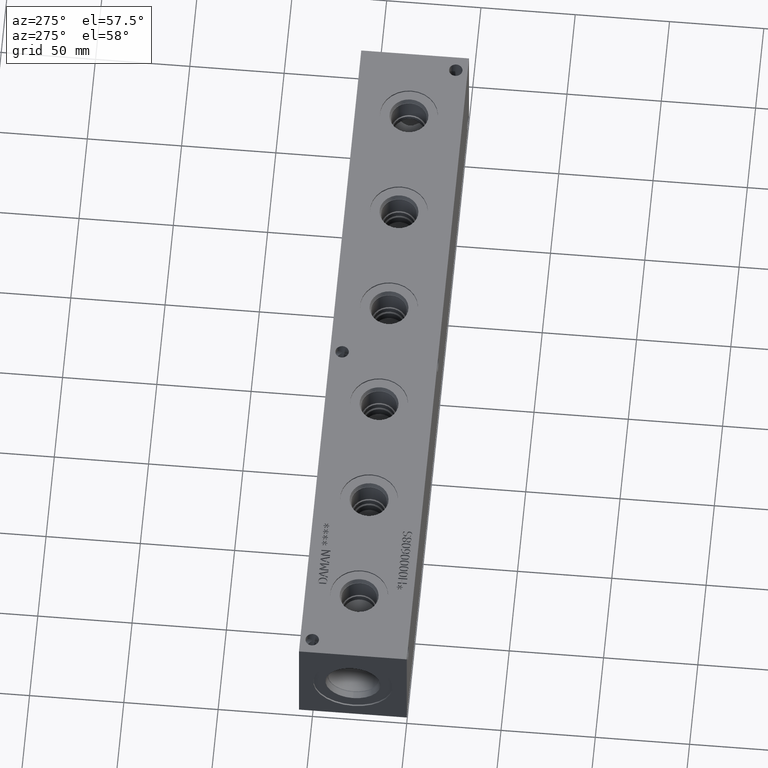
[diagram: clean part render]
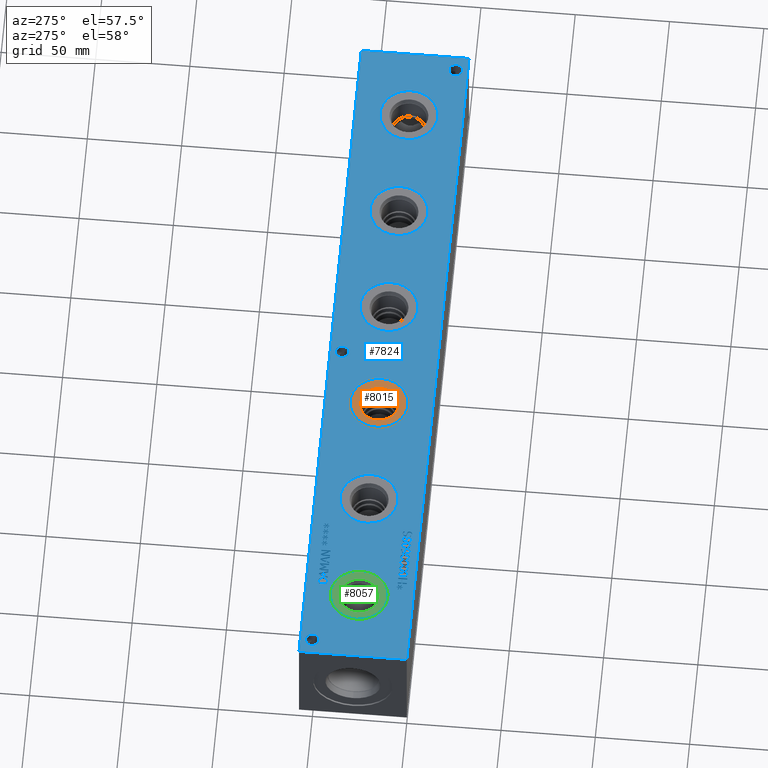
[diagram: same view with three faces highlighted in distinct colors, each labeled with its STEP entity id]
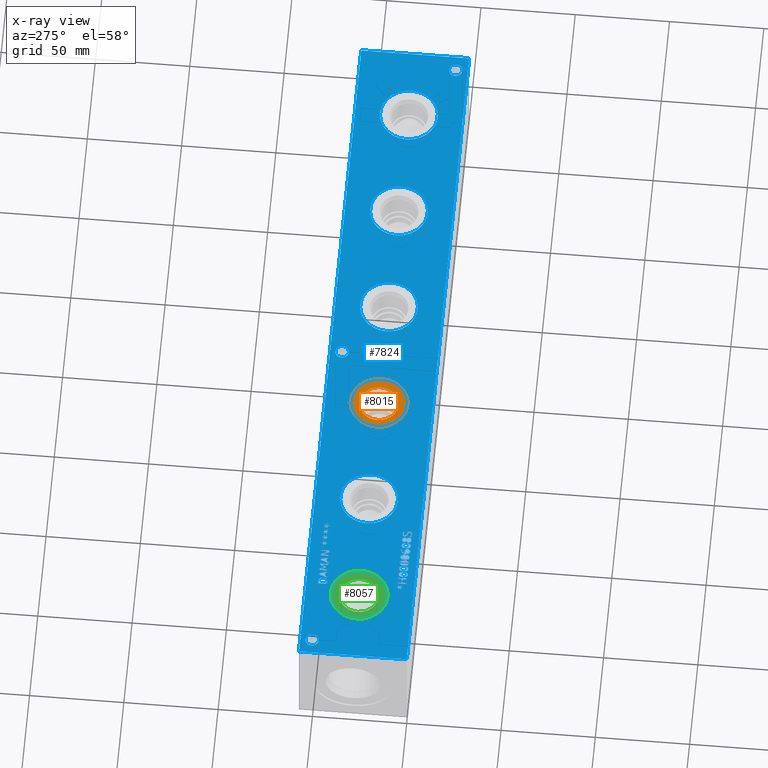
[diagram: x-ray of the same camera — body ghosted, the three highlighted faces saturated]
A machine part, auxiliary view with three faces highlighted in distinct colors.
The next image is the same camera in x-ray (body ghosted, the three faces saturated) — at least one of them is partly hidden behind the body in this view.
Their STEP definitions:

[orange] entity #8015 — the highlighted planar face has unit normal (0, 0, -1).
#186=CIRCLE('',#8414,15.3162);
#187=CIRCLE('',#8415,15.3162);
#188=CIRCLE('',#8417,10.2997);
#189=CIRCLE('',#8418,10.2997);
#315=FACE_BOUND('',#1363,.T.);
#533=PLANE('',#8416);
#903=FACE_OUTER_BOUND('',#1362,.T.);
#1362=EDGE_LOOP('',(#6919,#6920));
#1363=EDGE_LOOP('',(#6921,#6922));
#3753=VERTEX_POINT('',#13810);
#3754=VERTEX_POINT('',#13812);
#3755=VERTEX_POINT('',#13816);
#3756=VERTEX_POINT('',#13817);
#4837=EDGE_CURVE('',#3753,#3754,#186,.T.);
#4838=EDGE_CURVE('',#3754,#3753,#187,.T.);
#4839=EDGE_CURVE('',#3755,#3756,#188,.T.);
#4840=EDGE_CURVE('',#3756,#3755,#189,.T.);
#6919=ORIENTED_EDGE('',*,*,#4838,.F.);
#6920=ORIENTED_EDGE('',*,*,#4837,.F.);
#6921=ORIENTED_EDGE('',*,*,#4839,.T.);
#6922=ORIENTED_EDGE('',*,*,#4840,.T.);
#8015=ADVANCED_FACE('',(#903,#315),#533,.F.);
#8414=AXIS2_PLACEMENT_3D('',#13813,#9853,#9854);
#8415=AXIS2_PLACEMENT_3D('',#13814,#9855,#9856);
#8416=AXIS2_PLACEMENT_3D('',#13815,#9857,#9858);
#8417=AXIS2_PLACEMENT_3D('',#13818,#9859,#9860);
#8418=AXIS2_PLACEMENT_3D('',#13819,#9861,#9862);
#9853=DIRECTION('center_axis',(0.,0.,-1.));
#9854=DIRECTION('ref_axis',(1.,0.,0.));
#9855=DIRECTION('center_axis',(0.,0.,-1.));
#9856=DIRECTION('ref_axis',(1.,0.,0.));
#9857=DIRECTION('center_axis',(0.,0.,-1.));
#9858=DIRECTION('ref_axis',(-1.,0.,0.));
#9859=DIRECTION('center_axis',(0.,0.,-1.));
#9860=DIRECTION('ref_axis',(1.,0.,0.));
#9861=DIRECTION('center_axis',(0.,0.,-1.));
#9862=DIRECTION('ref_axis',(1.,0.,0.));
#13810=CARTESIAN_POINT('',(143.4338,28.575,56.3626));
#13812=CARTESIAN_POINT('',(174.0662,28.575,56.3626));
#13813=CARTESIAN_POINT('Origin',(158.75,28.575,56.3626));
#13814=CARTESIAN_POINT('Origin',(158.75,28.575,56.3626));
#13815=CARTESIAN_POINT('Origin',(169.0497,28.575,56.3626));
#13816=CARTESIAN_POINT('',(169.0497,28.575,56.3626));
#13817=CARTESIAN_POINT('',(148.4503,28.575,56.3626));
#13818=CARTESIAN_POINT('Origin',(158.75,28.575,56.3626));
#13819=CARTESIAN_POINT('Origin',(158.75,28.575,56.3626));

[blue] entity #7824 — the highlighted planar face has unit normal (0, 0, 1).
#106=CIRCLE('',#8140,15.3162);
#107=CIRCLE('',#8141,15.3162);
#108=CIRCLE('',#8142,15.3162);
#109=CIRCLE('',#8143,15.3162);
#110=CIRCLE('',#8144,15.3162);
#111=CIRCLE('',#8145,15.3162);
#112=CIRCLE('',#8146,15.3162);
#113=CIRCLE('',#8147,15.3162);
#114=CIRCLE('',#8148,15.3162);
#115=CIRCLE('',#8149,15.3162);
#116=CIRCLE('',#8150,15.3162);
#117=CIRCLE('',#8151,15.3162);
#118=CIRCLE('',#8152,3.5687);
#119=CIRCLE('',#8153,3.5687);
#120=CIRCLE('',#8154,3.5687);
#121=CIRCLE('',#8155,3.5687);
#122=CIRCLE('',#8156,3.5687);
#123=CIRCLE('',#8157,3.5687);
#279=FACE_BOUND('',#1136,.T.);
#280=FACE_BOUND('',#1137,.T.);
#281=FACE_BOUND('',#1138,.T.);
#282=FACE_BOUND('',#1139,.T.);
#283=FACE_BOUND('',#1140,.T.);
#284=FACE_BOUND('',#1141,.T.);
#285=FACE_BOUND('',#1142,.T.);
#286=FACE_BOUND('',#1143,.T.);
#287=FACE_BOUND('',#1144,.T.);
#288=FACE_BOUND('',#1145,.T.);
#289=FACE_BOUND('',#1146,.T.);
#290=FACE_BOUND('',#1147,.T.);
#291=FACE_BOUND('',#1148,.T.);
#292=FACE_BOUND('',#1149,.T.);
#293=FACE_BOUND('',#1150,.T.);
#294=FACE_BOUND('',#1151,.T.);
#295=FACE_BOUND('',#1152,.T.);
#296=FACE_BOUND('',#1153,.T.);
#297=FACE_BOUND('',#1154,.T.);
#298=FACE_BOUND('',#1155,.T.);
#299=FACE_BOUND('',#1156,.T.);
#300=FACE_BOUND('',#1157,.T.);
#301=FACE_BOUND('',#1158,.T.);
#302=FACE_BOUND('',#1159,.T.);
#303=FACE_BOUND('',#1160,.T.);
#304=FACE_BOUND('',#1161,.T.);
#305=FACE_BOUND('',#1162,.T.);
#306=FACE_BOUND('',#1163,.T.);
#385=PLANE('',#8139);
#712=FACE_OUTER_BOUND('',#1135,.T.);
#1135=EDGE_LOOP('',(#5741,#5742,#5743,#5744));
#1136=EDGE_LOOP('',(#5745,#5746,#5747,#5748,#5749,#5750,#5751,#5752,#5753,
#5754,#5755));
#1137=EDGE_LOOP('',(#5756,#5757,#5758,#5759));
#1138=EDGE_LOOP('',(#5760,#5761,#5762,#5763,#5764,#5765,#5766,#5767,#5768,
#5769,#5770,#5771,#5772,#5773));
#1139=EDGE_LOOP('',(#5774,#5775,#5776,#5777));
#1140=EDGE_LOOP('',(#5778,#5779,#5780,#5781));
#1141=EDGE_LOOP('',(#5782,#5783,#5784,#5785));
#1142=EDGE_LOOP('',(#5786,#5787,#5788,#5789));
#1143=EDGE_LOOP('',(#5790,#5791,#5792,#5793,#5794,#5795,#5796,#5797,#5798,
#5799,#5800,#5801,#5802,#5803,#5804,#5805,#5806,#5807));
#1144=EDGE_LOOP('',(#5808,#5809,#5810,#5811,#5812,#5813,#5814,#5815,#5816,
#5817,#5818,#5819));
#1145=EDGE_LOOP('',(#5820,#5821,#5822,#5823,#5824,#5825,#5826,#5827,#5828,
#5829,#5830,#5831,#5832,#5833,#5834,#5835,#5836,#5837,#5838,#5839));
#1146=EDGE_LOOP('',(#5840,#5841));
#1147=EDGE_LOOP('',(#5842,#5843));
#1148=EDGE_LOOP('',(#5844,#5845));
#1149=EDGE_LOOP('',(#5846,#5847));
#1150=EDGE_LOOP('',(#5848,#5849));
#1151=EDGE_LOOP('',(#5850,#5851));
#1152=EDGE_LOOP('',(#5852,#5853));
#1153=EDGE_LOOP('',(#5854,#5855));
#1154=EDGE_LOOP('',(#5856,#5857));
#1155=EDGE_LOOP('',(#5858,#5859,#5860,#5861,#5862,#5863,#5864,#5865,#5866,
#5867,#5868,#5869,#5870,#5871,#5872,#5873,#5874,#5875));
#1156=EDGE_LOOP('',(#5876,#5877,#5878,#5879,#5880,#5881,#5882,#5883,#5884,
#5885,#5886,#5887,#5888,#5889,#5890,#5891,#5892,#5893));
#1157=EDGE_LOOP('',(#5894,#5895,#5896,#5897,#5898,#5899,#5900,#5901,#5902,
#5903));
#1158=EDGE_LOOP('',(#5904,#5905,#5906,#5907,#5908,#5909,#5910,#5911));
#1159=EDGE_LOOP('',(#5912,#5913,#5914,#5915,#5916,#5917,#5918));
#1160=EDGE_LOOP('',(#5919,#5920,#5921,#5922,#5923,#5924,#5925,#5926));
#1161=EDGE_LOOP('',(#5927,#5928,#5929,#5930,#5931,#5932,#5933,#5934,#5935,
#5936,#5937,#5938,#5939));
#1162=EDGE_LOOP('',(#5940,#5941,#5942,#5943,#5944,#5945,#5946,#5947,#5948,
#5949,#5950,#5951,#5952,#5953,#5954,#5955,#5956,#5957));
#1163=EDGE_LOOP('',(#5958,#5959,#5960,#5961,#5962,#5963,#5964,#5965,#5966,
#5967,#5968,#5969,#5970,#5971,#5972,#5973,#5974,#5975));
#1459=LINE('',#10434,#2156);
#1466=LINE('',#10516,#2163);
#1496=LINE('',#11037,#2193);
#1499=LINE('',#11043,#2196);
#1556=LINE('',#12097,#2253);
#1560=LINE('',#12105,#2257);
#1563=LINE('',#12111,#2260);
#1566=LINE('',#12117,#2263);
#1569=LINE('',#12123,#2266);
#1572=LINE('',#12129,#2269);
#1575=LINE('',#12135,#2272);
#1578=LINE('',#12141,#2275);
#1581=LINE('',#12147,#2278);
#1584=LINE('',#12153,#2281);
#1587=LINE('',#12159,#2284);
#1590=LINE('',#12165,#2287);
#1593=LINE('',#12171,#2290);
#1596=LINE('',#12177,#2293);
#1599=LINE('',#12183,#2296);
#1602=LINE('',#12189,#2299);
#1605=LINE('',#12195,#2302);
#1608=LINE('',#12200,#2305);
#1610=LINE('',#12206,#2307);
#1614=LINE('',#12214,#2311);
#1617=LINE('',#12220,#2314);
#1620=LINE('',#12226,#2317);
#1623=LINE('',#12232,#2320);
#1626=LINE('',#12238,#2323);
#1629=LINE('',#12244,#2326);
#1632=LINE('',#12250,#2329);
#1635=LINE('',#12256,#2332);
#1638=LINE('',#12262,#2335);
#1641=LINE('',#12268,#2338);
#1644=LINE('',#12273,#2341);
#1654=LINE('',#12414,#2351);
#1657=LINE('',#12420,#2354);
#1668=LINE('',#12578,#2365);
#1671=LINE('',#12584,#2368);
#1674=LINE('',#12608,#2371);
#1675=LINE('',#12610,#2372);
#1676=LINE('',#12612,#2373);
#1677=LINE('',#12613,#2374);
#1678=LINE('',#12652,#2375);
#1679=LINE('',#12654,#2376);
#1680=LINE('',#12656,#2377);
#1681=LINE('',#12658,#2378);
#1682=LINE('',#12660,#2379);
#1683=LINE('',#12662,#2380);
#1684=LINE('',#12664,#2381);
#1685=LINE('',#12666,#2382);
#1686=LINE('',#12668,#2383);
#1687=LINE('',#12670,#2384);
#1688=LINE('',#12672,#2385);
#1689=LINE('',#12674,#2386);
#1690=LINE('',#12676,#2387);
#1691=LINE('',#12678,#2388);
#1692=LINE('',#12680,#2389);
#1693=LINE('',#12682,#2390);
#1694=LINE('',#12684,#2391);
#1695=LINE('',#12685,#2392);
#1696=LINE('',#12688,#2393);
#1697=LINE('',#12690,#2394);
#1698=LINE('',#12692,#2395);
#1699=LINE('',#12694,#2396);
#1700=LINE('',#12696,#2397);
#1701=LINE('',#12698,#2398);
#1702=LINE('',#12700,#2399);
#1703=LINE('',#12702,#2400);
#1704=LINE('',#12704,#2401);
#1705=LINE('',#12706,#2402);
#1706=LINE('',#12708,#2403);
#1707=LINE('',#12710,#2404);
#1708=LINE('',#12712,#2405);
#1709=LINE('',#12714,#2406);
#1710=LINE('',#12716,#2407);
#1711=LINE('',#12718,#2408);
#1712=LINE('',#12720,#2409);
#1713=LINE('',#12721,#2410);
#1714=LINE('',#12724,#2411);
#1715=LINE('',#12726,#2412);
#1716=LINE('',#12728,#2413);
#1717=LINE('',#12730,#2414);
#1718=LINE('',#12732,#2415);
#1719=LINE('',#12734,#2416);
#1720=LINE('',#12736,#2417);
#1721=LINE('',#12738,#2418);
#1722=LINE('',#12740,#2419);
#1723=LINE('',#12741,#2420);
#1724=LINE('',#12744,#2421);
#1725=LINE('',#12746,#2422);
#1726=LINE('',#12748,#2423);
#1727=LINE('',#12750,#2424);
#1728=LINE('',#12752,#2425);
#1729=LINE('',#12754,#2426);
#1730=LINE('',#12756,#2427);
#1731=LINE('',#12757,#2428);
#1732=LINE('',#12775,#2429);
#1733=LINE('',#12777,#2430);
#1734=LINE('',#12779,#2431);
#1735=LINE('',#12786,#2432);
#1736=LINE('',#12788,#2433);
#1737=LINE('',#12790,#2434);
#1738=LINE('',#12792,#2435);
#1739=LINE('',#12794,#2436);
#1740=LINE('',#12796,#2437);
#1741=LINE('',#12798,#2438);
#1742=LINE('',#12799,#2439);
#1743=LINE('',#12802,#2440);
#1744=LINE('',#12804,#2441);
#1745=LINE('',#12806,#2442);
#1746=LINE('',#12808,#2443);
#1747=LINE('',#12810,#2444);
#1748=LINE('',#12812,#2445);
#1749=LINE('',#12814,#2446);
#1750=LINE('',#12816,#2447);
#1751=LINE('',#12818,#2448);
#1752=LINE('',#12820,#2449);
#1753=LINE('',#12822,#2450);
#1754=LINE('',#12824,#2451);
#1755=LINE('',#12825,#2452);
#1756=LINE('',#12828,#2453);
#1757=LINE('',#12830,#2454);
#1758=LINE('',#12832,#2455);
#1759=LINE('',#12834,#2456);
#1760=LINE('',#12836,#2457);
#1761=LINE('',#12838,#2458);
#1762=LINE('',#12840,#2459);
#1763=LINE('',#12842,#2460);
#1764=LINE('',#12844,#2461);
#1765=LINE('',#12846,#2462);
#1766=LINE('',#12848,#2463);
#1767=LINE('',#12850,#2464);
#1768=LINE('',#12852,#2465);
#1769=LINE('',#12854,#2466);
#1770=LINE('',#12856,#2467);
#1771=LINE('',#12858,#2468);
#1772=LINE('',#12860,#2469);
#1773=LINE('',#12861,#2470);
#1774=LINE('',#12864,#2471);
#1775=LINE('',#12866,#2472);
#1776=LINE('',#12868,#2473);
#1777=LINE('',#12870,#2474);
#1778=LINE('',#12872,#2475);
#1779=LINE('',#12874,#2476);
#1780=LINE('',#12876,#2477);
#1781=LINE('',#12878,#2478);
#1782=LINE('',#12880,#2479);
#1783=LINE('',#12882,#2480);
#1784=LINE('',#12884,#2481);
#1785=LINE('',#12886,#2482);
#1786=LINE('',#12888,#2483);
#1787=LINE('',#12890,#2484);
#1788=LINE('',#12892,#2485);
#1789=LINE('',#12894,#2486);
#1790=LINE('',#12896,#2487);
#1791=LINE('',#12897,#2488);
#2156=VECTOR('',#8578,10.);
#2163=VECTOR('',#8587,10.);
#2193=VECTOR('',#8623,10.);
#2196=VECTOR('',#8628,10.);
#2253=VECTOR('',#8697,10.);
#2257=VECTOR('',#8703,10.);
#2260=VECTOR('',#8708,10.);
#2263=VECTOR('',#8713,10.);
#2266=VECTOR('',#8718,10.);
#2269=VECTOR('',#8723,10.);
#2272=VECTOR('',#8728,10.);
#2275=VECTOR('',#8733,10.);
#2278=VECTOR('',#8738,10.);
#2281=VECTOR('',#8743,10.);
#2284=VECTOR('',#8748,10.);
#2287=VECTOR('',#8753,10.);
#2290=VECTOR('',#8758,10.);
#2293=VECTOR('',#8763,10.);
#2296=VECTOR('',#8768,10.);
#2299=VECTOR('',#8773,10.);
#2302=VECTOR('',#8778,10.);
#2305=VECTOR('',#8783,10.);
#2307=VECTOR('',#8789,10.);
#2311=VECTOR('',#8795,10.);
#2314=VECTOR('',#8800,10.);
#2317=VECTOR('',#8805,10.);
#2320=VECTOR('',#8810,10.);
#2323=VECTOR('',#8815,10.);
#2326=VECTOR('',#8820,10.);
#2329=VECTOR('',#8825,10.);
#2332=VECTOR('',#8830,10.);
#2335=VECTOR('',#8835,10.);
#2338=VECTOR('',#8840,10.);
#2341=VECTOR('',#8845,10.);
#2351=VECTOR('',#8859,10.);
#2354=VECTOR('',#8864,10.);
#2365=VECTOR('',#8877,10.);
#2368=VECTOR('',#8882,10.);
#2371=VECTOR('',#8889,10.);
#2372=VECTOR('',#8890,10.);
#2373=VECTOR('',#8891,10.);
#2374=VECTOR('',#8892,10.);
#2375=VECTOR('',#8929,10.);
#2376=VECTOR('',#8930,10.);
#2377=VECTOR('',#8931,10.);
#2378=VECTOR('',#8932,10.);
#2379=VECTOR('',#8933,10.);
#2380=VECTOR('',#8934,10.);
#2381=VECTOR('',#8935,10.);
#2382=VECTOR('',#8936,10.);
#2383=VECTOR('',#8937,10.);
#2384=VECTOR('',#8938,10.);
#2385=VECTOR('',#8939,10.);
#2386=VECTOR('',#8940,10.);
#2387=VECTOR('',#8941,10.);
#2388=VECTOR('',#8942,10.);
#2389=VECTOR('',#8943,10.);
#2390=VECTOR('',#8944,10.);
#2391=VECTOR('',#8945,10.);
#2392=VECTOR('',#8946,10.);
#2393=VECTOR('',#8947,10.);
#2394=VECTOR('',#8948,10.);
#2395=VECTOR('',#8949,10.);
#2396=VECTOR('',#8950,10.);
#2397=VECTOR('',#8951,10.);
#2398=VECTOR('',#8952,10.);
#2399=VECTOR('',#8953,10.);
#2400=VECTOR('',#8954,10.);
#2401=VECTOR('',#8955,10.);
#2402=VECTOR('',#8956,10.);
#2403=VECTOR('',#8957,10.);
#2404=VECTOR('',#8958,10.);
#2405=VECTOR('',#8959,10.);
#2406=VECTOR('',#8960,10.);
#2407=VECTOR('',#8961,10.);
#2408=VECTOR('',#8962,10.);
#2409=VECTOR('',#8963,10.);
#2410=VECTOR('',#8964,10.);
#2411=VECTOR('',#8965,10.);
#2412=VECTOR('',#8966,10.);
#2413=VECTOR('',#8967,10.);
#2414=VECTOR('',#8968,10.);
#2415=VECTOR('',#8969,10.);
#2416=VECTOR('',#8970,10.);
#2417=VECTOR('',#8971,10.);
#2418=VECTOR('',#8972,10.);
#2419=VECTOR('',#8973,10.);
#2420=VECTOR('',#8974,10.);
#2421=VECTOR('',#8975,10.);
#2422=VECTOR('',#8976,10.);
#2423=VECTOR('',#8977,10.);
#2424=VECTOR('',#8978,10.);
#2425=VECTOR('',#8979,10.);
#2426=VECTOR('',#8980,10.);
#2427=VECTOR('',#8981,10.);
#2428=VECTOR('',#8982,10.);
#2429=VECTOR('',#8983,10.);
#2430=VECTOR('',#8984,10.);
#2431=VECTOR('',#8985,10.);
#2432=VECTOR('',#8986,10.);
#2433=VECTOR('',#8987,10.);
#2434=VECTOR('',#8988,10.);
#2435=VECTOR('',#8989,10.);
#2436=VECTOR('',#8990,10.);
#2437=VECTOR('',#8991,10.);
#2438=VECTOR('',#8992,10.);
#2439=VECTOR('',#8993,10.);
#2440=VECTOR('',#8994,10.);
#2441=VECTOR('',#8995,10.);
#2442=VECTOR('',#8996,10.);
#2443=VECTOR('',#8997,10.);
#2444=VECTOR('',#8998,10.);
#2445=VECTOR('',#8999,10.);
#2446=VECTOR('',#9000,10.);
#2447=VECTOR('',#9001,10.);
#2448=VECTOR('',#9002,10.);
#2449=VECTOR('',#9003,10.);
#2450=VECTOR('',#9004,10.);
#2451=VECTOR('',#9005,10.);
#2452=VECTOR('',#9006,10.);
#2453=VECTOR('',#9007,10.);
#2454=VECTOR('',#9008,10.);
#2455=VECTOR('',#9009,10.);
#2456=VECTOR('',#9010,10.);
#2457=VECTOR('',#9011,10.);
#2458=VECTOR('',#9012,10.);
#2459=VECTOR('',#9013,10.);
#2460=VECTOR('',#9014,10.);
#2461=VECTOR('',#9015,10.);
#2462=VECTOR('',#9016,10.);
#2463=VECTOR('',#9017,10.);
#2464=VECTOR('',#9018,10.);
#2465=VECTOR('',#9019,10.);
#2466=VECTOR('',#9020,10.);
#2467=VECTOR('',#9021,10.);
#2468=VECTOR('',#9022,10.);
#2469=VECTOR('',#9023,10.);
#2470=VECTOR('',#9024,10.);
#2471=VECTOR('',#9025,10.);
#2472=VECTOR('',#9026,10.);
#2473=VECTOR('',#9027,10.);
#2474=VECTOR('',#9028,10.);
#2475=VECTOR('',#9029,10.);
#2476=VECTOR('',#9030,10.);
#2477=VECTOR('',#9031,10.);
#2478=VECTOR('',#9032,10.);
#2479=VECTOR('',#9033,10.);
#2480=VECTOR('',#9034,10.);
#2481=VECTOR('',#9035,10.);
#2482=VECTOR('',#9036,10.);
#2483=VECTOR('',#9037,10.);
#2484=VECTOR('',#9038,10.);
#2485=VECTOR('',#9039,10.);
#2486=VECTOR('',#9040,10.);
#2487=VECTOR('',#9041,10.);
#2488=VECTOR('',#9042,10.);
#2860=B_SPLINE_CURVE_WITH_KNOTS('',2,(#10401,#10402,#10403,#10404),
 .UNSPECIFIED.,.F.,.F.,(3,1,3),(0.,1.,2.),.UNSPECIFIED.);
#2862=B_SPLINE_CURVE_WITH_KNOTS('',2,(#10422,#10423,#10424,#10425),
 .UNSPECIFIED.,.F.,.F.,(3,1,3),(0.,1.,2.),.UNSPECIFIED.);
#2864=B_SPLINE_CURVE_WITH_KNOTS('',2,(#10447,#10448,#10449,#10450),
 .UNSPECIFIED.,.F.,.F.,(3,1,3),(0.,1.,2.),.UNSPECIFIED.);
#2866=B_SPLINE_CURVE_WITH_KNOTS('',2,(#10466,#10467,#10468,#10469),
 .UNSPECIFIED.,.F.,.F.,(3,1,3),(0.,1.,2.),.UNSPECIFIED.);
#2868=B_SPLINE_CURVE_WITH_KNOTS('',2,(#10485,#10486,#10487,#10488),
 .UNSPECIFIED.,.F.,.F.,(3,1,3),(0.,1.,2.),.UNSPECIFIED.);
#2870=B_SPLINE_CURVE_WITH_KNOTS('',2,(#10504,#10505,#10506,#10507),
 .UNSPECIFIED.,.F.,.F.,(3,1,3),(0.,1.,2.),.UNSPECIFIED.);
#2872=B_SPLINE_CURVE_WITH_KNOTS('',2,(#10529,#10530,#10531,#10532),
 .UNSPECIFIED.,.F.,.F.,(3,1,3),(0.,1.,2.),.UNSPECIFIED.);
#2874=B_SPLINE_CURVE_WITH_KNOTS('',2,(#10548,#10549,#10550,#10551),
 .UNSPECIFIED.,.F.,.F.,(3,1,3),(0.,1.,2.),.UNSPECIFIED.);
#2876=B_SPLINE_CURVE_WITH_KNOTS('',2,(#10566,#10567,#10568,#10569),
 .UNSPECIFIED.,.F.,.F.,(3,1,3),(0.,1.,2.),.UNSPECIFIED.);
#2894=B_SPLINE_CURVE_WITH_KNOTS('',2,(#10737,#10738,#10739,#10740),
 .UNSPECIFIED.,.F.,.F.,(3,1,3),(0.,1.,2.),.UNSPECIFIED.);
#2896=B_SPLINE_CURVE_WITH_KNOTS('',2,(#10758,#10759,#10760,#10761),
 .UNSPECIFIED.,.F.,.F.,(3,1,3),(0.,1.,2.),.UNSPECIFIED.);
#2898=B_SPLINE_CURVE_WITH_KNOTS('',2,(#10777,#10778,#10779,#10780),
 .UNSPECIFIED.,.F.,.F.,(3,1,3),(0.,1.,2.),.UNSPECIFIED.);
#2900=B_SPLINE_CURVE_WITH_KNOTS('',2,(#10795,#10796,#10797,#10798),
 .UNSPECIFIED.,.F.,.F.,(3,1,3),(0.,1.,2.),.UNSPECIFIED.);
#2916=B_SPLINE_CURVE_WITH_KNOTS('',2,(#10947,#10948,#10949,#10950),
 .UNSPECIFIED.,.F.,.F.,(3,1,3),(0.,1.,2.),.UNSPECIFIED.);
#2918=B_SPLINE_CURVE_WITH_KNOTS('',2,(#10968,#10969,#10970,#10971),
 .UNSPECIFIED.,.F.,.F.,(3,1,3),(0.,1.,2.),.UNSPECIFIED.);
#2920=B_SPLINE_CURVE_WITH_KNOTS('',2,(#10987,#10988,#10989,#10990),
 .UNSPECIFIED.,.F.,.F.,(3,1,3),(0.,1.,2.),.UNSPECIFIED.);
#2922=B_SPLINE_CURVE_WITH_KNOTS('',2,(#11006,#11007,#11008,#11009),
 .UNSPECIFIED.,.F.,.F.,(3,1,3),(0.,1.,2.),.UNSPECIFIED.);
#2924=B_SPLINE_CURVE_WITH_KNOTS('',2,(#11025,#11026,#11027,#11028),
 .UNSPECIFIED.,.F.,.F.,(3,1,3),(0.,1.,2.),.UNSPECIFIED.);
#2926=B_SPLINE_CURVE_WITH_KNOTS('',2,(#11056,#11057,#11058,#11059),
 .UNSPECIFIED.,.F.,.F.,(3,1,3),(0.,1.,2.),.UNSPECIFIED.);
#2928=B_SPLINE_CURVE_WITH_KNOTS('',2,(#11075,#11076,#11077,#11078),
 .UNSPECIFIED.,.F.,.F.,(3,1,3),(0.,1.,2.),.UNSPECIFIED.);
#2930=B_SPLINE_CURVE_WITH_KNOTS('',2,(#11094,#11095,#11096,#11097),
 .UNSPECIFIED.,.F.,.F.,(3,1,3),(0.,1.,2.),.UNSPECIFIED.);
#2932=B_SPLINE_CURVE_WITH_KNOTS('',2,(#11113,#11114,#11115,#11116),
 .UNSPECIFIED.,.F.,.F.,(3,1,3),(0.,1.,2.),.UNSPECIFIED.);
#2934=B_SPLINE_CURVE_WITH_KNOTS('',2,(#11132,#11133,#11134,#11135),
 .UNSPECIFIED.,.F.,.F.,(3,1,3),(0.,1.,2.),.UNSPECIFIED.);
#2936=B_SPLINE_CURVE_WITH_KNOTS('',2,(#11151,#11152,#11153,#11154),
 .UNSPECIFIED.,.F.,.F.,(3,1,3),(0.,1.,2.),.UNSPECIFIED.);
#2938=B_SPLINE_CURVE_WITH_KNOTS('',2,(#11169,#11170,#11171,#11172),
 .UNSPECIFIED.,.F.,.F.,(3,1,3),(0.,1.,2.),.UNSPECIFIED.);
#2956=B_SPLINE_CURVE_WITH_KNOTS('',2,(#11340,#11341,#11342,#11343),
 .UNSPECIFIED.,.F.,.F.,(3,1,3),(0.,1.,2.),.UNSPECIFIED.);
#2958=B_SPLINE_CURVE_WITH_KNOTS('',2,(#11361,#11362,#11363,#11364),
 .UNSPECIFIED.,.F.,.F.,(3,1,3),(0.,1.,2.),.UNSPECIFIED.);
#2960=B_SPLINE_CURVE_WITH_KNOTS('',2,(#11380,#11381,#11382,#11383),
 .UNSPECIFIED.,.F.,.F.,(3,1,3),(0.,1.,2.),.UNSPECIFIED.);
#2962=B_SPLINE_CURVE_WITH_KNOTS('',2,(#11398,#11399,#11400,#11401),
 .UNSPECIFIED.,.F.,.F.,(3,1,3),(0.,1.,2.),.UNSPECIFIED.);
#2980=B_SPLINE_CURVE_WITH_KNOTS('',2,(#11569,#11570,#11571,#11572),
 .UNSPECIFIED.,.F.,.F.,(3,1,3),(0.,1.,2.),.UNSPECIFIED.);
#2982=B_SPLINE_CURVE_WITH_KNOTS('',2,(#11590,#11591,#11592,#11593),
 .UNSPECIFIED.,.F.,.F.,(3,1,3),(0.,1.,2.),.UNSPECIFIED.);
#2984=B_SPLINE_CURVE_WITH_KNOTS('',2,(#11609,#11610,#11611,#11612),
 .UNSPECIFIED.,.F.,.F.,(3,1,3),(0.,1.,2.),.UNSPECIFIED.);
#2986=B_SPLINE_CURVE_WITH_KNOTS('',2,(#11627,#11628,#11629,#11630),
 .UNSPECIFIED.,.F.,.F.,(3,1,3),(0.,1.,2.),.UNSPECIFIED.);
#3004=B_SPLINE_CURVE_WITH_KNOTS('',2,(#11798,#11799,#11800,#11801),
 .UNSPECIFIED.,.F.,.F.,(3,1,3),(0.,1.,2.),.UNSPECIFIED.);
#3006=B_SPLINE_CURVE_WITH_KNOTS('',2,(#11819,#11820,#11821,#11822),
 .UNSPECIFIED.,.F.,.F.,(3,1,3),(0.,1.,2.),.UNSPECIFIED.);
#3008=B_SPLINE_CURVE_WITH_KNOTS('',2,(#11838,#11839,#11840,#11841),
 .UNSPECIFIED.,.F.,.F.,(3,1,3),(0.,1.,2.),.UNSPECIFIED.);
#3010=B_SPLINE_CURVE_WITH_KNOTS('',2,(#11856,#11857,#11858,#11859),
 .UNSPECIFIED.,.F.,.F.,(3,1,3),(0.,1.,2.),.UNSPECIFIED.);
#3028=B_SPLINE_CURVE_WITH_KNOTS('',2,(#12027,#12028,#12029,#12030),
 .UNSPECIFIED.,.F.,.F.,(3,1,3),(0.,1.,2.),.UNSPECIFIED.);
#3030=B_SPLINE_CURVE_WITH_KNOTS('',2,(#12048,#12049,#12050,#12051),
 .UNSPECIFIED.,.F.,.F.,(3,1,3),(0.,1.,2.),.UNSPECIFIED.);
#3032=B_SPLINE_CURVE_WITH_KNOTS('',2,(#12067,#12068,#12069,#12070),
 .UNSPECIFIED.,.F.,.F.,(3,1,3),(0.,1.,2.),.UNSPECIFIED.);
#3034=B_SPLINE_CURVE_WITH_KNOTS('',2,(#12085,#12086,#12087,#12088),
 .UNSPECIFIED.,.F.,.F.,(3,1,3),(0.,1.,2.),.UNSPECIFIED.);
#3036=B_SPLINE_CURVE_WITH_KNOTS('',2,(#12286,#12287,#12288,#12289),
 .UNSPECIFIED.,.F.,.F.,(3,1,3),(0.,1.,2.),.UNSPECIFIED.);
#3038=B_SPLINE_CURVE_WITH_KNOTS('',2,(#12307,#12308,#12309,#12310),
 .UNSPECIFIED.,.F.,.F.,(3,1,3),(0.,1.,2.),.UNSPECIFIED.);
#3040=B_SPLINE_CURVE_WITH_KNOTS('',2,(#12326,#12327,#12328,#12329),
 .UNSPECIFIED.,.F.,.F.,(3,1,3),(0.,1.,2.),.UNSPECIFIED.);
#3042=B_SPLINE_CURVE_WITH_KNOTS('',2,(#12345,#12346,#12347,#12348),
 .UNSPECIFIED.,.F.,.F.,(3,1,3),(0.,1.,2.),.UNSPECIFIED.);
#3044=B_SPLINE_CURVE_WITH_KNOTS('',2,(#12364,#12365,#12366,#12367),
 .UNSPECIFIED.,.F.,.F.,(3,1,3),(0.,1.,2.),.UNSPECIFIED.);
#3046=B_SPLINE_CURVE_WITH_KNOTS('',2,(#12383,#12384,#12385,#12386),
 .UNSPECIFIED.,.F.,.F.,(3,1,3),(0.,1.,2.),.UNSPECIFIED.);
#3048=B_SPLINE_CURVE_WITH_KNOTS('',2,(#12402,#12403,#12404,#12405),
 .UNSPECIFIED.,.F.,.F.,(3,1,3),(0.,1.,2.),.UNSPECIFIED.);
#3050=B_SPLINE_CURVE_WITH_KNOTS('',2,(#12433,#12434,#12435,#12436),
 .UNSPECIFIED.,.F.,.F.,(3,1,3),(0.,1.,2.),.UNSPECIFIED.);
#3052=B_SPLINE_CURVE_WITH_KNOTS('',2,(#12452,#12453,#12454,#12455),
 .UNSPECIFIED.,.F.,.F.,(3,1,3),(0.,1.,2.),.UNSPECIFIED.);
#3054=B_SPLINE_CURVE_WITH_KNOTS('',2,(#12471,#12472,#12473,#12474),
 .UNSPECIFIED.,.F.,.F.,(3,1,3),(0.,1.,2.),.UNSPECIFIED.);
#3056=B_SPLINE_CURVE_WITH_KNOTS('',2,(#12490,#12491,#12492,#12493),
 .UNSPECIFIED.,.F.,.F.,(3,1,3),(0.,1.,2.),.UNSPECIFIED.);
#3058=B_SPLINE_CURVE_WITH_KNOTS('',2,(#12509,#12510,#12511,#12512),
 .UNSPECIFIED.,.F.,.F.,(3,1,3),(0.,1.,2.),.UNSPECIFIED.);
#3060=B_SPLINE_CURVE_WITH_KNOTS('',2,(#12528,#12529,#12530,#12531),
 .UNSPECIFIED.,.F.,.F.,(3,1,3),(0.,1.,2.),.UNSPECIFIED.);
#3062=B_SPLINE_CURVE_WITH_KNOTS('',2,(#12547,#12548,#12549,#12550),
 .UNSPECIFIED.,.F.,.F.,(3,1,3),(0.,1.,2.),.UNSPECIFIED.);
#3064=B_SPLINE_CURVE_WITH_KNOTS('',2,(#12566,#12567,#12568,#12569),
 .UNSPECIFIED.,.F.,.F.,(3,1,3),(0.,1.,2.),.UNSPECIFIED.);
#3066=B_SPLINE_CURVE_WITH_KNOTS('',2,(#12596,#12597,#12598,#12599),
 .UNSPECIFIED.,.F.,.F.,(3,1,3),(0.,1.,2.),.UNSPECIFIED.);
#3068=B_SPLINE_CURVE_WITH_KNOTS('',2,(#12760,#12761,#12762,#12763),
 .UNSPECIFIED.,.F.,.F.,(3,1,3),(0.,1.,2.),.UNSPECIFIED.);
#3069=B_SPLINE_CURVE_WITH_KNOTS('',2,(#12765,#12766,#12767,#12768),
 .UNSPECIFIED.,.F.,.F.,(3,1,3),(0.,1.,2.),.UNSPECIFIED.);
#3070=B_SPLINE_CURVE_WITH_KNOTS('',2,(#12770,#12771,#12772,#12773),
 .UNSPECIFIED.,.F.,.F.,(3,1,3),(0.,1.,2.),.UNSPECIFIED.);
#3071=B_SPLINE_CURVE_WITH_KNOTS('',2,(#12780,#12781,#12782,#12783),
 .UNSPECIFIED.,.F.,.F.,(3,1,3),(0.,1.,2.),.UNSPECIFIED.);
#3114=VERTEX_POINT('',#10399);
#3115=VERTEX_POINT('',#10400);
#3118=VERTEX_POINT('',#10421);
#3120=VERTEX_POINT('',#10433);
#3122=VERTEX_POINT('',#10446);
#3124=VERTEX_POINT('',#10465);
#3126=VERTEX_POINT('',#10484);
#3128=VERTEX_POINT('',#10503);
#3130=VERTEX_POINT('',#10515);
#3132=VERTEX_POINT('',#10528);
#3134=VERTEX_POINT('',#10547);
#3152=VERTEX_POINT('',#10735);
#3153=VERTEX_POINT('',#10736);
#3156=VERTEX_POINT('',#10757);
#3158=VERTEX_POINT('',#10776);
#3174=VERTEX_POINT('',#10945);
#3175=VERTEX_POINT('',#10946);
#3178=VERTEX_POINT('',#10967);
#3180=VERTEX_POINT('',#10986);
#3182=VERTEX_POINT('',#11005);
#3184=VERTEX_POINT('',#11024);
#3186=VERTEX_POINT('',#11036);
#3188=VERTEX_POINT('',#11042);
#3190=VERTEX_POINT('',#11055);
#3192=VERTEX_POINT('',#11074);
#3194=VERTEX_POINT('',#11093);
#3196=VERTEX_POINT('',#11112);
#3198=VERTEX_POINT('',#11131);
#3200=VERTEX_POINT('',#11150);
#3218=VERTEX_POINT('',#11338);
#3219=VERTEX_POINT('',#11339);
#3222=VERTEX_POINT('',#11360);
#3224=VERTEX_POINT('',#11379);
#3242=VERTEX_POINT('',#11567);
#3243=VERTEX_POINT('',#11568);
#3246=VERTEX_POINT('',#11589);
#3248=VERTEX_POINT('',#11608);
#3266=VERTEX_POINT('',#11796);
#3267=VERTEX_POINT('',#11797);
#3270=VERTEX_POINT('',#11818);
#3272=VERTEX_POINT('',#11837);
#3290=VERTEX_POINT('',#12025);
#3291=VERTEX_POINT('',#12026);
#3294=VERTEX_POINT('',#12047);
#3296=VERTEX_POINT('',#12066);
#3298=VERTEX_POINT('',#12095);
#3299=VERTEX_POINT('',#12096);
#3302=VERTEX_POINT('',#12104);
#3304=VERTEX_POINT('',#12110);
#3306=VERTEX_POINT('',#12116);
#3308=VERTEX_POINT('',#12122);
#3310=VERTEX_POINT('',#12128);
#3312=VERTEX_POINT('',#12134);
#3314=VERTEX_POINT('',#12140);
#3316=VERTEX_POINT('',#12146);
#3318=VERTEX_POINT('',#12152);
#3320=VERTEX_POINT('',#12158);
#3322=VERTEX_POINT('',#12164);
#3324=VERTEX_POINT('',#12170);
#3326=VERTEX_POINT('',#12176);
#3328=VERTEX_POINT('',#12182);
#3330=VERTEX_POINT('',#12188);
#3332=VERTEX_POINT('',#12194);
#3334=VERTEX_POINT('',#12204);
#3335=VERTEX_POINT('',#12205);
#3338=VERTEX_POINT('',#12213);
#3340=VERTEX_POINT('',#12219);
#3342=VERTEX_POINT('',#12225);
#3344=VERTEX_POINT('',#12231);
#3346=VERTEX_POINT('',#12237);
#3348=VERTEX_POINT('',#12243);
#3350=VERTEX_POINT('',#12249);
#3352=VERTEX_POINT('',#12255);
#3354=VERTEX_POINT('',#12261);
#3356=VERTEX_POINT('',#12267);
#3358=VERTEX_POINT('',#12284);
#3359=VERTEX_POINT('',#12285);
#3362=VERTEX_POINT('',#12306);
#3364=VERTEX_POINT('',#12325);
#3366=VERTEX_POINT('',#12344);
#3368=VERTEX_POINT('',#12363);
#3370=VERTEX_POINT('',#12382);
#3372=VERTEX_POINT('',#12401);
#3374=VERTEX_POINT('',#12413);
#3376=VERTEX_POINT('',#12419);
#3378=VERTEX_POINT('',#12432);
#3380=VERTEX_POINT('',#12451);
#3382=VERTEX_POINT('',#12470);
#3384=VERTEX_POINT('',#12489);
#3386=VERTEX_POINT('',#12508);
#3388=VERTEX_POINT('',#12527);
#3390=VERTEX_POINT('',#12546);
#3392=VERTEX_POINT('',#12565);
#3394=VERTEX_POINT('',#12577);
#3396=VERTEX_POINT('',#12583);
#3398=VERTEX_POINT('',#12606);
#3399=VERTEX_POINT('',#12607);
#3400=VERTEX_POINT('',#12609);
#3401=VERTEX_POINT('',#12611);
#3402=VERTEX_POINT('',#12614);
#3403=VERTEX_POINT('',#12615);
#3404=VERTEX_POINT('',#12618);
#3405=VERTEX_POINT('',#12619);
#3406=VERTEX_POINT('',#12622);
#3407=VERTEX_POINT('',#12623);
#3408=VERTEX_POINT('',#12626);
#3409=VERTEX_POINT('',#12627);
#3410=VERTEX_POINT('',#12630);
#3411=VERTEX_POINT('',#12631);
#3412=VERTEX_POINT('',#12634);
#3413=VERTEX_POINT('',#12635);
#3414=VERTEX_POINT('',#12638);
#3415=VERTEX_POINT('',#12639);
#3416=VERTEX_POINT('',#12642);
#3417=VERTEX_POINT('',#12643);
#3418=VERTEX_POINT('',#12646);
#3419=VERTEX_POINT('',#12647);
#3420=VERTEX_POINT('',#12650);
#3421=VERTEX_POINT('',#12651);
#3422=VERTEX_POINT('',#12653);
#3423=VERTEX_POINT('',#12655);
#3424=VERTEX_POINT('',#12657);
#3425=VERTEX_POINT('',#12659);
#3426=VERTEX_POINT('',#12661);
#3427=VERTEX_POINT('',#12663);
#3428=VERTEX_POINT('',#12665);
#3429=VERTEX_POINT('',#12667);
#3430=VERTEX_POINT('',#12669);
#3431=VERTEX_POINT('',#12671);
#3432=VERTEX_POINT('',#12673);
#3433=VERTEX_POINT('',#12675);
#3434=VERTEX_POINT('',#12677);
#3435=VERTEX_POINT('',#12679);
#3436=VERTEX_POINT('',#12681);
#3437=VERTEX_POINT('',#12683);
#3438=VERTEX_POINT('',#12686);
#3439=VERTEX_POINT('',#12687);
#3440=VERTEX_POINT('',#12689);
#3441=VERTEX_POINT('',#12691);
#3442=VERTEX_POINT('',#12693);
#3443=VERTEX_POINT('',#12695);
#3444=VERTEX_POINT('',#12697);
#3445=VERTEX_POINT('',#12699);
#3446=VERTEX_POINT('',#12701);
#3447=VERTEX_POINT('',#12703);
#3448=VERTEX_POINT('',#12705);
#3449=VERTEX_POINT('',#12707);
#3450=VERTEX_POINT('',#12709);
#3451=VERTEX_POINT('',#12711);
#3452=VERTEX_POINT('',#12713);
#3453=VERTEX_POINT('',#12715);
#3454=VERTEX_POINT('',#12717);
#3455=VERTEX_POINT('',#12719);
#3456=VERTEX_POINT('',#12722);
#3457=VERTEX_POINT('',#12723);
#3458=VERTEX_POINT('',#12725);
#3459=VERTEX_POINT('',#12727);
#3460=VERTEX_POINT('',#12729);
#3461=VERTEX_POINT('',#12731);
#3462=VERTEX_POINT('',#12733);
#3463=VERTEX_POINT('',#12735);
#3464=VERTEX_POINT('',#12737);
#3465=VERTEX_POINT('',#12739);
#3466=VERTEX_POINT('',#12742);
#3467=VERTEX_POINT('',#12743);
#3468=VERTEX_POINT('',#12745);
#3469=VERTEX_POINT('',#12747);
#3470=VERTEX_POINT('',#12749);
#3471=VERTEX_POINT('',#12751);
#3472=VERTEX_POINT('',#12753);
#3473=VERTEX_POINT('',#12755);
#3474=VERTEX_POINT('',#12758);
#3475=VERTEX_POINT('',#12759);
#3476=VERTEX_POINT('',#12764);
#3477=VERTEX_POINT('',#12769);
#3478=VERTEX_POINT('',#12774);
#3479=VERTEX_POINT('',#12776);
#3480=VERTEX_POINT('',#12778);
#3481=VERTEX_POINT('',#12784);
#3482=VERTEX_POINT('',#12785);
#3483=VERTEX_POINT('',#12787);
#3484=VERTEX_POINT('',#12789);
#3485=VERTEX_POINT('',#12791);
#3486=VERTEX_POINT('',#12793);
#3487=VERTEX_POINT('',#12795);
#3488=VERTEX_POINT('',#12797);
#3489=VERTEX_POINT('',#12800);
#3490=VERTEX_POINT('',#12801);
#3491=VERTEX_POINT('',#12803);
#3492=VERTEX_POINT('',#12805);
#3493=VERTEX_POINT('',#12807);
#3494=VERTEX_POINT('',#12809);
#3495=VERTEX_POINT('',#12811);
#3496=VERTEX_POINT('',#12813);
#3497=VERTEX_POINT('',#12815);
#3498=VERTEX_POINT('',#12817);
#3499=VERTEX_POINT('',#12819);
#3500=VERTEX_POINT('',#12821);
#3501=VERTEX_POINT('',#12823);
#3502=VERTEX_POINT('',#12826);
#3503=VERTEX_POINT('',#12827);
#3504=VERTEX_POINT('',#12829);
#3505=VERTEX_POINT('',#12831);
#3506=VERTEX_POINT('',#12833);
#3507=VERTEX_POINT('',#12835);
#3508=VERTEX_POINT('',#12837);
#3509=VERTEX_POINT('',#12839);
#3510=VERTEX_POINT('',#12841);
#3511=VERTEX_POINT('',#12843);
#3512=VERTEX_POINT('',#12845);
#3513=VERTEX_POINT('',#12847);
#3514=VERTEX_POINT('',#12849);
#3515=VERTEX_POINT('',#12851);
#3516=VERTEX_POINT('',#12853);
#3517=VERTEX_POINT('',#12855);
#3518=VERTEX_POINT('',#12857);
#3519=VERTEX_POINT('',#12859);
#3520=VERTEX_POINT('',#12862);
#3521=VERTEX_POINT('',#12863);
#3522=VERTEX_POINT('',#12865);
#3523=VERTEX_POINT('',#12867);
#3524=VERTEX_POINT('',#12869);
#3525=VERTEX_POINT('',#12871);
#3526=VERTEX_POINT('',#12873);
#3527=VERTEX_POINT('',#12875);
#3528=VERTEX_POINT('',#12877);
#3529=VERTEX_POINT('',#12879);
#3530=VERTEX_POINT('',#12881);
#3531=VERTEX_POINT('',#12883);
#3532=VERTEX_POINT('',#12885);
#3533=VERTEX_POINT('',#12887);
#3534=VERTEX_POINT('',#12889);
#3535=VERTEX_POINT('',#12891);
#3536=VERTEX_POINT('',#12893);
#3537=VERTEX_POINT('',#12895);
#3883=EDGE_CURVE('',#3114,#3115,#2860,.T.);
#3887=EDGE_CURVE('',#3118,#3114,#2862,.T.);
#3890=EDGE_CURVE('',#3120,#3118,#1459,.T.);
#3893=EDGE_CURVE('',#3122,#3120,#2864,.T.);
#3896=EDGE_CURVE('',#3124,#3122,#2866,.T.);
#3899=EDGE_CURVE('',#3126,#3124,#2868,.T.);
#3902=EDGE_CURVE('',#3128,#3126,#2870,.T.);
#3905=EDGE_CURVE('',#3130,#3128,#1466,.T.);
#3908=EDGE_CURVE('',#3132,#3130,#2872,.T.);
#3911=EDGE_CURVE('',#3134,#3132,#2874,.T.);
#3914=EDGE_CURVE('',#3115,#3134,#2876,.T.);
#3940=EDGE_CURVE('',#3152,#3153,#2894,.T.);
#3944=EDGE_CURVE('',#3156,#3152,#2896,.T.);
#3947=EDGE_CURVE('',#3158,#3156,#2898,.T.);
#3950=EDGE_CURVE('',#3153,#3158,#2900,.T.);
#3973=EDGE_CURVE('',#3174,#3175,#2916,.T.);
#3977=EDGE_CURVE('',#3178,#3174,#2918,.T.);
#3980=EDGE_CURVE('',#3180,#3178,#2920,.T.);
#3983=EDGE_CURVE('',#3182,#3180,#2922,.T.);
#3986=EDGE_CURVE('',#3184,#3182,#2924,.T.);
#3989=EDGE_CURVE('',#3186,#3184,#1496,.T.);
#3992=EDGE_CURVE('',#3188,#3186,#1499,.T.);
#3995=EDGE_CURVE('',#3190,#3188,#2926,.T.);
#3998=EDGE_CURVE('',#3192,#3190,#2928,.T.);
#4001=EDGE_CURVE('',#3194,#3192,#2930,.T.);
#4004=EDGE_CURVE('',#3196,#3194,#2932,.T.);
#4007=EDGE_CURVE('',#3198,#3196,#2934,.T.);
#4010=EDGE_CURVE('',#3200,#3198,#2936,.T.);
#4013=EDGE_CURVE('',#3175,#3200,#2938,.T.);
#4039=EDGE_CURVE('',#3218,#3219,#2956,.T.);
#4043=EDGE_CURVE('',#3222,#3218,#2958,.T.);
#4046=EDGE_CURVE('',#3224,#3222,#2960,.T.);
#4049=EDGE_CURVE('',#3219,#3224,#2962,.T.);
#4075=EDGE_CURVE('',#3242,#3243,#2980,.T.);
#4079=EDGE_CURVE('',#3246,#3242,#2982,.T.);
#4082=EDGE_CURVE('',#3248,#3246,#2984,.T.);
#4085=EDGE_CURVE('',#3243,#3248,#2986,.T.);
#4111=EDGE_CURVE('',#3266,#3267,#3004,.T.);
#4115=EDGE_CURVE('',#3270,#3266,#3006,.T.);
#4118=EDGE_CURVE('',#3272,#3270,#3008,.T.);
#4121=EDGE_CURVE('',#3267,#3272,#3010,.T.);
#4147=EDGE_CURVE('',#3290,#3291,#3028,.T.);
#4151=EDGE_CURVE('',#3294,#3290,#3030,.T.);
#4154=EDGE_CURVE('',#3296,#3294,#3032,.T.);
#4157=EDGE_CURVE('',#3291,#3296,#3034,.T.);
#4159=EDGE_CURVE('',#3298,#3299,#1556,.T.);
#4163=EDGE_CURVE('',#3302,#3298,#1560,.T.);
#4166=EDGE_CURVE('',#3304,#3302,#1563,.T.);
#4169=EDGE_CURVE('',#3306,#3304,#1566,.T.);
#4172=EDGE_CURVE('',#3308,#3306,#1569,.T.);
#4175=EDGE_CURVE('',#3310,#3308,#1572,.T.);
#4178=EDGE_CURVE('',#3312,#3310,#1575,.T.);
#4181=EDGE_CURVE('',#3314,#3312,#1578,.T.);
#4184=EDGE_CURVE('',#3316,#3314,#1581,.T.);
#4187=EDGE_CURVE('',#3318,#3316,#1584,.T.);
#4190=EDGE_CURVE('',#3320,#3318,#1587,.T.);
#4193=EDGE_CURVE('',#3322,#3320,#1590,.T.);
#4196=EDGE_CURVE('',#3324,#3322,#1593,.T.);
#4199=EDGE_CURVE('',#3326,#3324,#1596,.T.);
#4202=EDGE_CURVE('',#3328,#3326,#1599,.T.);
#4205=EDGE_CURVE('',#3330,#3328,#1602,.T.);
#4208=EDGE_CURVE('',#3332,#3330,#1605,.T.);
#4211=EDGE_CURVE('',#3299,#3332,#1608,.T.);
#4213=EDGE_CURVE('',#3334,#3335,#1610,.T.);
#4217=EDGE_CURVE('',#3338,#3334,#1614,.T.);
#4220=EDGE_CURVE('',#3340,#3338,#1617,.T.);
#4223=EDGE_CURVE('',#3342,#3340,#1620,.T.);
#4226=EDGE_CURVE('',#3344,#3342,#1623,.T.);
#4229=EDGE_CURVE('',#3346,#3344,#1626,.T.);
#4232=EDGE_CURVE('',#3348,#3346,#1629,.T.);
#4235=EDGE_CURVE('',#3350,#3348,#1632,.T.);
#4238=EDGE_CURVE('',#3352,#3350,#1635,.T.);
#4241=EDGE_CURVE('',#3354,#3352,#1638,.T.);
#4244=EDGE_CURVE('',#3356,#3354,#1641,.T.);
#4247=EDGE_CURVE('',#3335,#3356,#1644,.T.);
#4249=EDGE_CURVE('',#3358,#3359,#3036,.T.);
#4253=EDGE_CURVE('',#3362,#3358,#3038,.T.);
#4256=EDGE_CURVE('',#3364,#3362,#3040,.T.);
#4259=EDGE_CURVE('',#3366,#3364,#3042,.T.);
#4262=EDGE_CURVE('',#3368,#3366,#3044,.T.);
#4265=EDGE_CURVE('',#3370,#3368,#3046,.T.);
#4268=EDGE_CURVE('',#3372,#3370,#3048,.T.);
#4271=EDGE_CURVE('',#3374,#3372,#1654,.T.);
#4274=EDGE_CURVE('',#3376,#3374,#1657,.T.);
#4277=EDGE_CURVE('',#3378,#3376,#3050,.T.);
#4280=EDGE_CURVE('',#3380,#3378,#3052,.T.);
#4283=EDGE_CURVE('',#3382,#3380,#3054,.T.);
#4286=EDGE_CURVE('',#3384,#3382,#3056,.T.);
#4289=EDGE_CURVE('',#3386,#3384,#3058,.T.);
#4292=EDGE_CURVE('',#3388,#3386,#3060,.T.);
#4295=EDGE_CURVE('',#3390,#3388,#3062,.T.);
#4298=EDGE_CURVE('',#3392,#3390,#3064,.T.);
#4301=EDGE_CURVE('',#3394,#3392,#1668,.T.);
#4304=EDGE_CURVE('',#3396,#3394,#1671,.T.);
#4307=EDGE_CURVE('',#3359,#3396,#3066,.T.);
#4309=EDGE_CURVE('',#3398,#3399,#1674,.T.);
#4310=EDGE_CURVE('',#3399,#3400,#1675,.T.);
#4311=EDGE_CURVE('',#3400,#3401,#1676,.T.);
#4312=EDGE_CURVE('',#3401,#3398,#1677,.T.);
#4313=EDGE_CURVE('',#3402,#3403,#106,.T.);
#4314=EDGE_CURVE('',#3403,#3402,#107,.T.);
#4315=EDGE_CURVE('',#3404,#3405,#108,.T.);
#4316=EDGE_CURVE('',#3405,#3404,#109,.T.);
#4317=EDGE_CURVE('',#3406,#3407,#110,.T.);
#4318=EDGE_CURVE('',#3407,#3406,#111,.T.);
#4319=EDGE_CURVE('',#3408,#3409,#112,.T.);
#4320=EDGE_CURVE('',#3409,#3408,#113,.T.);
#4321=EDGE_CURVE('',#3410,#3411,#114,.T.);
#4322=EDGE_CURVE('',#3411,#3410,#115,.T.);
#4323=EDGE_CURVE('',#3412,#3413,#116,.T.);
#4324=EDGE_CURVE('',#3413,#3412,#117,.T.);
#4325=EDGE_CURVE('',#3414,#3415,#118,.T.);
#4326=EDGE_CURVE('',#3415,#3414,#119,.T.);
#4327=EDGE_CURVE('',#3416,#3417,#120,.T.);
#4328=EDGE_CURVE('',#3417,#3416,#121,.T.);
#4329=EDGE_CURVE('',#3418,#3419,#122,.T.);
#4330=EDGE_CURVE('',#3419,#3418,#123,.T.);
#4331=EDGE_CURVE('',#3420,#3421,#1678,.T.);
#4332=EDGE_CURVE('',#3421,#3422,#1679,.T.);
#4333=EDGE_CURVE('',#3422,#3423,#1680,.T.);
#4334=EDGE_CURVE('',#3423,#3424,#1681,.T.);
#4335=EDGE_CURVE('',#3424,#3425,#1682,.T.);
#4336=EDGE_CURVE('',#3425,#3426,#1683,.T.);
#4337=EDGE_CURVE('',#3426,#3427,#1684,.T.);
#4338=EDGE_CURVE('',#3427,#3428,#1685,.T.);
#4339=EDGE_CURVE('',#3428,#3429,#1686,.T.);
#4340=EDGE_CURVE('',#3429,#3430,#1687,.T.);
#4341=EDGE_CURVE('',#3430,#3431,#1688,.T.);
#4342=EDGE_CURVE('',#3431,#3432,#1689,.T.);
#4343=EDGE_CURVE('',#3432,#3433,#1690,.T.);
#4344=EDGE_CURVE('',#3433,#3434,#1691,.T.);
#4345=EDGE_CURVE('',#3434,#3435,#1692,.T.);
#4346=EDGE_CURVE('',#3435,#3436,#1693,.T.);
#4347=EDGE_CURVE('',#3436,#3437,#1694,.T.);
#4348=EDGE_CURVE('',#3437,#3420,#1695,.T.);
#4349=EDGE_CURVE('',#3438,#3439,#1696,.T.);
#4350=EDGE_CURVE('',#3439,#3440,#1697,.T.);
#4351=EDGE_CURVE('',#3440,#3441,#1698,.T.);
#4352=EDGE_CURVE('',#3441,#3442,#1699,.T.);
#4353=EDGE_CURVE('',#3442,#3443,#1700,.T.);
#4354=EDGE_CURVE('',#3443,#3444,#1701,.T.);
#4355=EDGE_CURVE('',#3444,#3445,#1702,.T.);
#4356=EDGE_CURVE('',#3445,#3446,#1703,.T.);
#4357=EDGE_CURVE('',#3446,#3447,#1704,.T.);
#4358=EDGE_CURVE('',#3447,#3448,#1705,.T.);
#4359=EDGE_CURVE('',#3448,#3449,#1706,.T.);
#4360=EDGE_CURVE('',#3449,#3450,#1707,.T.);
#4361=EDGE_CURVE('',#3450,#3451,#1708,.T.);
#4362=EDGE_CURVE('',#3451,#3452,#1709,.T.);
#4363=EDGE_CURVE('',#3452,#3453,#1710,.T.);
#4364=EDGE_CURVE('',#3453,#3454,#1711,.T.);
#4365=EDGE_CURVE('',#3454,#3455,#1712,.T.);
#4366=EDGE_CURVE('',#3455,#3438,#1713,.T.);
#4367=EDGE_CURVE('',#3456,#3457,#1714,.T.);
#4368=EDGE_CURVE('',#3457,#3458,#1715,.T.);
#4369=EDGE_CURVE('',#3458,#3459,#1716,.T.);
#4370=EDGE_CURVE('',#3459,#3460,#1717,.T.);
#4371=EDGE_CURVE('',#3460,#3461,#1718,.T.);
#4372=EDGE_CURVE('',#3461,#3462,#1719,.T.);
#4373=EDGE_CURVE('',#3462,#3463,#1720,.T.);
#4374=EDGE_CURVE('',#3463,#3464,#1721,.T.);
#4375=EDGE_CURVE('',#3464,#3465,#1722,.T.);
#4376=EDGE_CURVE('',#3465,#3456,#1723,.T.);
#4377=EDGE_CURVE('',#3466,#3467,#1724,.T.);
#4378=EDGE_CURVE('',#3467,#3468,#1725,.T.);
#4379=EDGE_CURVE('',#3468,#3469,#1726,.T.);
#4380=EDGE_CURVE('',#3469,#3470,#1727,.T.);
#4381=EDGE_CURVE('',#3470,#3471,#1728,.T.);
#4382=EDGE_CURVE('',#3471,#3472,#1729,.T.);
#4383=EDGE_CURVE('',#3472,#3473,#1730,.T.);
#4384=EDGE_CURVE('',#3473,#3466,#1731,.T.);
#4385=EDGE_CURVE('',#3474,#3475,#3068,.T.);
#4386=EDGE_CURVE('',#3475,#3476,#3069,.T.);
#4387=EDGE_CURVE('',#3476,#3477,#3070,.T.);
#4388=EDGE_CURVE('',#3477,#3478,#1732,.T.);
#4389=EDGE_CURVE('',#3478,#3479,#1733,.T.);
#4390=EDGE_CURVE('',#3479,#3480,#1734,.T.);
#4391=EDGE_CURVE('',#3480,#3474,#3071,.T.);
#4392=EDGE_CURVE('',#3481,#3482,#1735,.T.);
#4393=EDGE_CURVE('',#3482,#3483,#1736,.T.);
#4394=EDGE_CURVE('',#3483,#3484,#1737,.T.);
#4395=EDGE_CURVE('',#3484,#3485,#1738,.T.);
#4396=EDGE_CURVE('',#3485,#3486,#1739,.T.);
#4397=EDGE_CURVE('',#3486,#3487,#1740,.T.);
#4398=EDGE_CURVE('',#3487,#3488,#1741,.T.);
#4399=EDGE_CURVE('',#3488,#3481,#1742,.T.);
#4400=EDGE_CURVE('',#3489,#3490,#1743,.T.);
#4401=EDGE_CURVE('',#3490,#3491,#1744,.T.);
#4402=EDGE_CURVE('',#3491,#3492,#1745,.T.);
#4403=EDGE_CURVE('',#3492,#3493,#1746,.T.);
#4404=EDGE_CURVE('',#3493,#3494,#1747,.T.);
#4405=EDGE_CURVE('',#3494,#3495,#1748,.T.);
#4406=EDGE_CURVE('',#3495,#3496,#1749,.T.);
#4407=EDGE_CURVE('',#3496,#3497,#1750,.T.);
#4408=EDGE_CURVE('',#3497,#3498,#1751,.T.);
#4409=EDGE_CURVE('',#3498,#3499,#1752,.T.);
#4410=EDGE_CURVE('',#3499,#3500,#1753,.T.);
#4411=EDGE_CURVE('',#3500,#3501,#1754,.T.);
#4412=EDGE_CURVE('',#3501,#3489,#1755,.T.);
#4413=EDGE_CURVE('',#3502,#3503,#1756,.T.);
#4414=EDGE_CURVE('',#3503,#3504,#1757,.T.);
#4415=EDGE_CURVE('',#3504,#3505,#1758,.T.);
#4416=EDGE_CURVE('',#3505,#3506,#1759,.T.);
#4417=EDGE_CURVE('',#3506,#3507,#1760,.T.);
#4418=EDGE_CURVE('',#3507,#3508,#1761,.T.);
#4419=EDGE_CURVE('',#3508,#3509,#1762,.T.);
#4420=EDGE_CURVE('',#3509,#3510,#1763,.T.);
#4421=EDGE_CURVE('',#3510,#3511,#1764,.T.);
#4422=EDGE_CURVE('',#3511,#3512,#1765,.T.);
#4423=EDGE_CURVE('',#3512,#3513,#1766,.T.);
#4424=EDGE_CURVE('',#3513,#3514,#1767,.T.);
#4425=EDGE_CURVE('',#3514,#3515,#1768,.T.);
#4426=EDGE_CURVE('',#3515,#3516,#1769,.T.);
#4427=EDGE_CURVE('',#3516,#3517,#1770,.T.);
#4428=EDGE_CURVE('',#3517,#3518,#1771,.T.);
#4429=EDGE_CURVE('',#3518,#3519,#1772,.T.);
#4430=EDGE_CURVE('',#3519,#3502,#1773,.T.);
#4431=EDGE_CURVE('',#3520,#3521,#1774,.T.);
#4432=EDGE_CURVE('',#3521,#3522,#1775,.T.);
#4433=EDGE_CURVE('',#3522,#3523,#1776,.T.);
#4434=EDGE_CURVE('',#3523,#3524,#1777,.T.);
#4435=EDGE_CURVE('',#3524,#3525,#1778,.T.);
#4436=EDGE_CURVE('',#3525,#3526,#1779,.T.);
#4437=EDGE_CURVE('',#3526,#3527,#1780,.T.);
#4438=EDGE_CURVE('',#3527,#3528,#1781,.T.);
#4439=EDGE_CURVE('',#3528,#3529,#1782,.T.);
#4440=EDGE_CURVE('',#3529,#3530,#1783,.T.);
#4441=EDGE_CURVE('',#3530,#3531,#1784,.T.);
#4442=EDGE_CURVE('',#3531,#3532,#1785,.T.);
#4443=EDGE_CURVE('',#3532,#3533,#1786,.T.);
#4444=EDGE_CURVE('',#3533,#3534,#1787,.T.);
#4445=EDGE_CURVE('',#3534,#3535,#1788,.T.);
#4446=EDGE_CURVE('',#3535,#3536,#1789,.T.);
#4447=EDGE_CURVE('',#3536,#3537,#1790,.T.);
#4448=EDGE_CURVE('',#3537,#3520,#1791,.T.);
#5741=ORIENTED_EDGE('',*,*,#4309,.T.);
#5742=ORIENTED_EDGE('',*,*,#4310,.T.);
#5743=ORIENTED_EDGE('',*,*,#4311,.T.);
#5744=ORIENTED_EDGE('',*,*,#4312,.T.);
#5745=ORIENTED_EDGE('',*,*,#3883,.T.);
#5746=ORIENTED_EDGE('',*,*,#3914,.T.);
#5747=ORIENTED_EDGE('',*,*,#3911,.T.);
#5748=ORIENTED_EDGE('',*,*,#3908,.T.);
#5749=ORIENTED_EDGE('',*,*,#3905,.T.);
#5750=ORIENTED_EDGE('',*,*,#3902,.T.);
#5751=ORIENTED_EDGE('',*,*,#3899,.T.);
#5752=ORIENTED_EDGE('',*,*,#3896,.T.);
#5753=ORIENTED_EDGE('',*,*,#3893,.T.);
#5754=ORIENTED_EDGE('',*,*,#3890,.T.);
#5755=ORIENTED_EDGE('',*,*,#3887,.T.);
#5756=ORIENTED_EDGE('',*,*,#3940,.T.);
#5757=ORIENTED_EDGE('',*,*,#3950,.T.);
#5758=ORIENTED_EDGE('',*,*,#3947,.T.);
#5759=ORIENTED_EDGE('',*,*,#3944,.T.);
#5760=ORIENTED_EDGE('',*,*,#3973,.T.);
#5761=ORIENTED_EDGE('',*,*,#4013,.T.);
#5762=ORIENTED_EDGE('',*,*,#4010,.T.);
#5763=ORIENTED_EDGE('',*,*,#4007,.T.);
#5764=ORIENTED_EDGE('',*,*,#4004,.T.);
#5765=ORIENTED_EDGE('',*,*,#4001,.T.);
#5766=ORIENTED_EDGE('',*,*,#3998,.T.);
#5767=ORIENTED_EDGE('',*,*,#3995,.T.);
#5768=ORIENTED_EDGE('',*,*,#3992,.T.);
#5769=ORIENTED_EDGE('',*,*,#3989,.T.);
#5770=ORIENTED_EDGE('',*,*,#3986,.T.);
#5771=ORIENTED_EDGE('',*,*,#3983,.T.);
#5772=ORIENTED_EDGE('',*,*,#3980,.T.);
#5773=ORIENTED_EDGE('',*,*,#3977,.T.);
#5774=ORIENTED_EDGE('',*,*,#4039,.T.);
#5775=ORIENTED_EDGE('',*,*,#4049,.T.);
#5776=ORIENTED_EDGE('',*,*,#4046,.T.);
#5777=ORIENTED_EDGE('',*,*,#4043,.T.);
#5778=ORIENTED_EDGE('',*,*,#4075,.T.);
#5779=ORIENTED_EDGE('',*,*,#4085,.T.);
#5780=ORIENTED_EDGE('',*,*,#4082,.T.);
#5781=ORIENTED_EDGE('',*,*,#4079,.T.);
#5782=ORIENTED_EDGE('',*,*,#4111,.T.);
#5783=ORIENTED_EDGE('',*,*,#4121,.T.);
#5784=ORIENTED_EDGE('',*,*,#4118,.T.);
#5785=ORIENTED_EDGE('',*,*,#4115,.T.);
#5786=ORIENTED_EDGE('',*,*,#4147,.T.);
#5787=ORIENTED_EDGE('',*,*,#4157,.T.);
#5788=ORIENTED_EDGE('',*,*,#4154,.T.);
#5789=ORIENTED_EDGE('',*,*,#4151,.T.);
#5790=ORIENTED_EDGE('',*,*,#4159,.T.);
#5791=ORIENTED_EDGE('',*,*,#4211,.T.);
#5792=ORIENTED_EDGE('',*,*,#4208,.T.);
#5793=ORIENTED_EDGE('',*,*,#4205,.T.);
#5794=ORIENTED_EDGE('',*,*,#4202,.T.);
#5795=ORIENTED_EDGE('',*,*,#4199,.T.);
#5796=ORIENTED_EDGE('',*,*,#4196,.T.);
#5797=ORIENTED_EDGE('',*,*,#4193,.T.);
#5798=ORIENTED_EDGE('',*,*,#4190,.T.);
#5799=ORIENTED_EDGE('',*,*,#4187,.T.);
#5800=ORIENTED_EDGE('',*,*,#4184,.T.);
#5801=ORIENTED_EDGE('',*,*,#4181,.T.);
#5802=ORIENTED_EDGE('',*,*,#4178,.T.);
#5803=ORIENTED_EDGE('',*,*,#4175,.T.);
#5804=ORIENTED_EDGE('',*,*,#4172,.T.);
#5805=ORIENTED_EDGE('',*,*,#4169,.T.);
#5806=ORIENTED_EDGE('',*,*,#4166,.T.);
#5807=ORIENTED_EDGE('',*,*,#4163,.T.);
#5808=ORIENTED_EDGE('',*,*,#4213,.T.);
#5809=ORIENTED_EDGE('',*,*,#4247,.T.);
#5810=ORIENTED_EDGE('',*,*,#4244,.T.);
#5811=ORIENTED_EDGE('',*,*,#4241,.T.);
#5812=ORIENTED_EDGE('',*,*,#4238,.T.);
#5813=ORIENTED_EDGE('',*,*,#4235,.T.);
#5814=ORIENTED_EDGE('',*,*,#4232,.T.);
#5815=ORIENTED_EDGE('',*,*,#4229,.T.);
#5816=ORIENTED_EDGE('',*,*,#4226,.T.);
#5817=ORIENTED_EDGE('',*,*,#4223,.T.);
#5818=ORIENTED_EDGE('',*,*,#4220,.T.);
#5819=ORIENTED_EDGE('',*,*,#4217,.T.);
#5820=ORIENTED_EDGE('',*,*,#4249,.T.);
#5821=ORIENTED_EDGE('',*,*,#4307,.T.);
#5822=ORIENTED_EDGE('',*,*,#4304,.T.);
#5823=ORIENTED_EDGE('',*,*,#4301,.T.);
#5824=ORIENTED_EDGE('',*,*,#4298,.T.);
#5825=ORIENTED_EDGE('',*,*,#4295,.T.);
#5826=ORIENTED_EDGE('',*,*,#4292,.T.);
#5827=ORIENTED_EDGE('',*,*,#4289,.T.);
#5828=ORIENTED_EDGE('',*,*,#4286,.T.);
#5829=ORIENTED_EDGE('',*,*,#4283,.T.);
#5830=ORIENTED_EDGE('',*,*,#4280,.T.);
#5831=ORIENTED_EDGE('',*,*,#4277,.T.);
#5832=ORIENTED_EDGE('',*,*,#4274,.T.);
#5833=ORIENTED_EDGE('',*,*,#4271,.T.);
#5834=ORIENTED_EDGE('',*,*,#4268,.T.);
#5835=ORIENTED_EDGE('',*,*,#4265,.T.);
#5836=ORIENTED_EDGE('',*,*,#4262,.T.);
#5837=ORIENTED_EDGE('',*,*,#4259,.T.);
#5838=ORIENTED_EDGE('',*,*,#4256,.T.);
#5839=ORIENTED_EDGE('',*,*,#4253,.T.);
#5840=ORIENTED_EDGE('',*,*,#4313,.T.);
#5841=ORIENTED_EDGE('',*,*,#4314,.T.);
#5842=ORIENTED_EDGE('',*,*,#4315,.T.);
#5843=ORIENTED_EDGE('',*,*,#4316,.T.);
#5844=ORIENTED_EDGE('',*,*,#4317,.T.);
#5845=ORIENTED_EDGE('',*,*,#4318,.T.);
#5846=ORIENTED_EDGE('',*,*,#4319,.T.);
#5847=ORIENTED_EDGE('',*,*,#4320,.T.);
#5848=ORIENTED_EDGE('',*,*,#4321,.T.);
#5849=ORIENTED_EDGE('',*,*,#4322,.T.);
#5850=ORIENTED_EDGE('',*,*,#4323,.T.);
#5851=ORIENTED_EDGE('',*,*,#4324,.T.);
#5852=ORIENTED_EDGE('',*,*,#4325,.T.);
#5853=ORIENTED_EDGE('',*,*,#4326,.T.);
#5854=ORIENTED_EDGE('',*,*,#4327,.T.);
#5855=ORIENTED_EDGE('',*,*,#4328,.T.);
#5856=ORIENTED_EDGE('',*,*,#4329,.T.);
#5857=ORIENTED_EDGE('',*,*,#4330,.T.);
#5858=ORIENTED_EDGE('',*,*,#4331,.T.);
#5859=ORIENTED_EDGE('',*,*,#4332,.T.);
#5860=ORIENTED_EDGE('',*,*,#4333,.T.);
#5861=ORIENTED_EDGE('',*,*,#4334,.T.);
#5862=ORIENTED_EDGE('',*,*,#4335,.T.);
#5863=ORIENTED_EDGE('',*,*,#4336,.T.);
#5864=ORIENTED_EDGE('',*,*,#4337,.T.);
#5865=ORIENTED_EDGE('',*,*,#4338,.T.);
#5866=ORIENTED_EDGE('',*,*,#4339,.T.);
#5867=ORIENTED_EDGE('',*,*,#4340,.T.);
#5868=ORIENTED_EDGE('',*,*,#4341,.T.);
#5869=ORIENTED_EDGE('',*,*,#4342,.T.);
#5870=ORIENTED_EDGE('',*,*,#4343,.T.);
#5871=ORIENTED_EDGE('',*,*,#4344,.T.);
#5872=ORIENTED_EDGE('',*,*,#4345,.T.);
#5873=ORIENTED_EDGE('',*,*,#4346,.T.);
#5874=ORIENTED_EDGE('',*,*,#4347,.T.);
#5875=ORIENTED_EDGE('',*,*,#4348,.T.);
#5876=ORIENTED_EDGE('',*,*,#4349,.T.);
#5877=ORIENTED_EDGE('',*,*,#4350,.T.);
#5878=ORIENTED_EDGE('',*,*,#4351,.T.);
#5879=ORIENTED_EDGE('',*,*,#4352,.T.);
#5880=ORIENTED_EDGE('',*,*,#4353,.T.);
#5881=ORIENTED_EDGE('',*,*,#4354,.T.);
#5882=ORIENTED_EDGE('',*,*,#4355,.T.);
#5883=ORIENTED_EDGE('',*,*,#4356,.T.);
#5884=ORIENTED_EDGE('',*,*,#4357,.T.);
#5885=ORIENTED_EDGE('',*,*,#4358,.T.);
#5886=ORIENTED_EDGE('',*,*,#4359,.T.);
#5887=ORIENTED_EDGE('',*,*,#4360,.T.);
#5888=ORIENTED_EDGE('',*,*,#4361,.T.);
#5889=ORIENTED_EDGE('',*,*,#4362,.T.);
#5890=ORIENTED_EDGE('',*,*,#4363,.T.);
#5891=ORIENTED_EDGE('',*,*,#4364,.T.);
#5892=ORIENTED_EDGE('',*,*,#4365,.T.);
#5893=ORIENTED_EDGE('',*,*,#4366,.T.);
#5894=ORIENTED_EDGE('',*,*,#4367,.T.);
#5895=ORIENTED_EDGE('',*,*,#4368,.T.);
#5896=ORIENTED_EDGE('',*,*,#4369,.T.);
#5897=ORIENTED_EDGE('',*,*,#4370,.T.);
#5898=ORIENTED_EDGE('',*,*,#4371,.T.);
#5899=ORIENTED_EDGE('',*,*,#4372,.T.);
#5900=ORIENTED_EDGE('',*,*,#4373,.T.);
#5901=ORIENTED_EDGE('',*,*,#4374,.T.);
#5902=ORIENTED_EDGE('',*,*,#4375,.T.);
#5903=ORIENTED_EDGE('',*,*,#4376,.T.);
#5904=ORIENTED_EDGE('',*,*,#4377,.T.);
#5905=ORIENTED_EDGE('',*,*,#4378,.T.);
#5906=ORIENTED_EDGE('',*,*,#4379,.T.);
#5907=ORIENTED_EDGE('',*,*,#4380,.T.);
#5908=ORIENTED_EDGE('',*,*,#4381,.T.);
#5909=ORIENTED_EDGE('',*,*,#4382,.T.);
#5910=ORIENTED_EDGE('',*,*,#4383,.T.);
#5911=ORIENTED_EDGE('',*,*,#4384,.T.);
#5912=ORIENTED_EDGE('',*,*,#4385,.T.);
#5913=ORIENTED_EDGE('',*,*,#4386,.T.);
#5914=ORIENTED_EDGE('',*,*,#4387,.T.);
#5915=ORIENTED_EDGE('',*,*,#4388,.T.);
#5916=ORIENTED_EDGE('',*,*,#4389,.T.);
#5917=ORIENTED_EDGE('',*,*,#4390,.T.);
#5918=ORIENTED_EDGE('',*,*,#4391,.T.);
#5919=ORIENTED_EDGE('',*,*,#4392,.T.);
#5920=ORIENTED_EDGE('',*,*,#4393,.T.);
#5921=ORIENTED_EDGE('',*,*,#4394,.T.);
#5922=ORIENTED_EDGE('',*,*,#4395,.T.);
#5923=ORIENTED_EDGE('',*,*,#4396,.T.);
#5924=ORIENTED_EDGE('',*,*,#4397,.T.);
#5925=ORIENTED_EDGE('',*,*,#4398,.T.);
#5926=ORIENTED_EDGE('',*,*,#4399,.T.);
#5927=ORIENTED_EDGE('',*,*,#4400,.T.);
#5928=ORIENTED_EDGE('',*,*,#4401,.T.);
#5929=ORIENTED_EDGE('',*,*,#4402,.T.);
#5930=ORIENTED_EDGE('',*,*,#4403,.T.);
#5931=ORIENTED_EDGE('',*,*,#4404,.T.);
#5932=ORIENTED_EDGE('',*,*,#4405,.T.);
#5933=ORIENTED_EDGE('',*,*,#4406,.T.);
#5934=ORIENTED_EDGE('',*,*,#4407,.T.);
#5935=ORIENTED_EDGE('',*,*,#4408,.T.);
#5936=ORIENTED_EDGE('',*,*,#4409,.T.);
#5937=ORIENTED_EDGE('',*,*,#4410,.T.);
#5938=ORIENTED_EDGE('',*,*,#4411,.T.);
#5939=ORIENTED_EDGE('',*,*,#4412,.T.);
#5940=ORIENTED_EDGE('',*,*,#4413,.T.);
#5941=ORIENTED_EDGE('',*,*,#4414,.T.);
#5942=ORIENTED_EDGE('',*,*,#4415,.T.);
#5943=ORIENTED_EDGE('',*,*,#4416,.T.);
#5944=ORIENTED_EDGE('',*,*,#4417,.T.);
#5945=ORIENTED_EDGE('',*,*,#4418,.T.);
#5946=ORIENTED_EDGE('',*,*,#4419,.T.);
#5947=ORIENTED_EDGE('',*,*,#4420,.T.);
#5948=ORIENTED_EDGE('',*,*,#4421,.T.);
#5949=ORIENTED_EDGE('',*,*,#4422,.T.);
#5950=ORIENTED_EDGE('',*,*,#4423,.T.);
#5951=ORIENTED_EDGE('',*,*,#4424,.T.);
#5952=ORIENTED_EDGE('',*,*,#4425,.T.);
#5953=ORIENTED_EDGE('',*,*,#4426,.T.);
#5954=ORIENTED_EDGE('',*,*,#4427,.T.);
#5955=ORIENTED_EDGE('',*,*,#4428,.T.);
#5956=ORIENTED_EDGE('',*,*,#4429,.T.);
#5957=ORIENTED_EDGE('',*,*,#4430,.T.);
#5958=ORIENTED_EDGE('',*,*,#4431,.T.);
#5959=ORIENTED_EDGE('',*,*,#4432,.T.);
#5960=ORIENTED_EDGE('',*,*,#4433,.T.);
#5961=ORIENTED_EDGE('',*,*,#4434,.T.);
#5962=ORIENTED_EDGE('',*,*,#4435,.T.);
#5963=ORIENTED_EDGE('',*,*,#4436,.T.);
#5964=ORIENTED_EDGE('',*,*,#4437,.T.);
#5965=ORIENTED_EDGE('',*,*,#4438,.T.);
#5966=ORIENTED_EDGE('',*,*,#4439,.T.);
#5967=ORIENTED_EDGE('',*,*,#4440,.T.);
#5968=ORIENTED_EDGE('',*,*,#4441,.T.);
#5969=ORIENTED_EDGE('',*,*,#4442,.T.);
#5970=ORIENTED_EDGE('',*,*,#4443,.T.);
#5971=ORIENTED_EDGE('',*,*,#4444,.T.);
#5972=ORIENTED_EDGE('',*,*,#4445,.T.);
#5973=ORIENTED_EDGE('',*,*,#4446,.T.);
#5974=ORIENTED_EDGE('',*,*,#4447,.T.);
#5975=ORIENTED_EDGE('',*,*,#4448,.T.);
#7824=ADVANCED_FACE('',(#712,#279,#280,#281,#282,#283,#284,#285,#286,#287,
#288,#289,#290,#291,#292,#293,#294,#295,#296,#297,#298,#299,#300,#301,#302,
#303,#304,#305,#306),#385,.T.);
#8139=AXIS2_PLACEMENT_3D('',#12605,#8887,#8888);
#8140=AXIS2_PLACEMENT_3D('',#12616,#8893,#8894);
#8141=AXIS2_PLACEMENT_3D('',#12617,#8895,#8896);
#8142=AXIS2_PLACEMENT_3D('',#12620,#8897,#8898);
#8143=AXIS2_PLACEMENT_3D('',#12621,#8899,#8900);
#8144=AXIS2_PLACEMENT_3D('',#12624,#8901,#8902);
#8145=AXIS2_PLACEMENT_3D('',#12625,#8903,#8904);
#8146=AXIS2_PLACEMENT_3D('',#12628,#8905,#8906);
#8147=AXIS2_PLACEMENT_3D('',#12629,#8907,#8908);
#8148=AXIS2_PLACEMENT_3D('',#12632,#8909,#8910);
#8149=AXIS2_PLACEMENT_3D('',#12633,#8911,#8912);
#8150=AXIS2_PLACEMENT_3D('',#12636,#8913,#8914);
#8151=AXIS2_PLACEMENT_3D('',#12637,#8915,#8916);
#8152=AXIS2_PLACEMENT_3D('',#12640,#8917,#8918);
#8153=AXIS2_PLACEMENT_3D('',#12641,#8919,#8920);
#8154=AXIS2_PLACEMENT_3D('',#12644,#8921,#8922);
#8155=AXIS2_PLACEMENT_3D('',#12645,#8923,#8924);
#8156=AXIS2_PLACEMENT_3D('',#12648,#8925,#8926);
#8157=AXIS2_PLACEMENT_3D('',#12649,#8927,#8928);
#8578=DIRECTION('',(0.,-1.,0.));
#8587=DIRECTION('',(0.,1.,0.));
#8623=DIRECTION('',(-1.,0.,0.));
#8628=DIRECTION('',(0.,-1.,0.));
#8697=DIRECTION('',(0.863671970566992,-0.50405428998961,0.));
#8703=DIRECTION('',(-0.86495430708312,-0.501850621857101,0.));
#8708=DIRECTION('',(0.510320389620593,-0.859984360286561,0.));
#8713=DIRECTION('',(0.83393220572654,0.551866900848445,0.));
#8718=DIRECTION('',(-0.0231725839648085,-0.999731479624601,0.));
#8723=DIRECTION('',(1.,0.,0.));
#8728=DIRECTION('',(-0.0198636297743478,0.999802698642181,0.));
#8733=DIRECTION('',(0.83062769207368,-0.556828193575318,0.));
#8738=DIRECTION('',(0.517259170391712,0.855828809193566,0.));
#8743=DIRECTION('',(-0.863671970566992,0.50405428998961,0.));
#8748=DIRECTION('',(0.862387849576918,0.506248157430819,0.));
#8753=DIRECTION('',(-0.517259170391712,0.855828809193566,0.));
#8758=DIRECTION('',(-0.829670163866863,-0.558253902081421,0.));
#8763=DIRECTION('',(0.0165540227281047,0.999862972777529,0.));
#8768=DIRECTION('',(-1.,0.,0.));
#8773=DIRECTION('',(0.0198636297743478,-0.999802698642181,0.));
#8778=DIRECTION('',(-0.832994863913619,0.55328072141864,0.));
#8783=DIRECTION('',(-0.510320389620593,-0.859984360286561,0.));
#8789=DIRECTION('',(0.,-1.,0.));
#8795=DIRECTION('',(1.,0.,0.));
#8800=DIRECTION('',(0.,1.,0.));
#8805=DIRECTION('',(1.,0.,0.));
#8810=DIRECTION('',(0.,-1.,0.));
#8815=DIRECTION('',(1.,0.,0.));
#8820=DIRECTION('',(0.,1.,0.));
#8825=DIRECTION('',(-1.,0.,0.));
#8830=DIRECTION('',(0.,-1.,0.));
#8835=DIRECTION('',(-1.,0.,0.));
#8840=DIRECTION('',(0.,1.,0.));
#8845=DIRECTION('',(-1.,0.,0.));
#8859=DIRECTION('',(-1.,0.,0.));
#8864=DIRECTION('',(0.,-1.,0.));
#8877=DIRECTION('',(1.,0.,0.));
#8882=DIRECTION('',(0.,1.,0.));
#8887=DIRECTION('center_axis',(0.,0.,1.));
#8888=DIRECTION('ref_axis',(1.,0.,0.));
#8889=DIRECTION('',(1.,0.,0.));
#8890=DIRECTION('',(0.,1.,0.));
#8891=DIRECTION('',(-1.,0.,0.));
#8892=DIRECTION('',(0.,-1.,0.));
#8893=DIRECTION('center_axis',(0.,0.,-1.));
#8894=DIRECTION('ref_axis',(1.,0.,0.));
#8895=DIRECTION('center_axis',(0.,0.,-1.));
#8896=DIRECTION('ref_axis',(1.,0.,0.));
#8897=DIRECTION('center_axis',(0.,0.,-1.));
#8898=DIRECTION('ref_axis',(1.,0.,0.));
#8899=DIRECTION('center_axis',(0.,0.,-1.));
#8900=DIRECTION('ref_axis',(1.,0.,0.));
#8901=DIRECTION('center_axis',(0.,0.,-1.));
#8902=DIRECTION('ref_axis',(1.,0.,0.));
#8903=DIRECTION('center_axis',(0.,0.,-1.));
#8904=DIRECTION('ref_axis',(1.,0.,0.));
#8905=DIRECTION('center_axis',(0.,0.,-1.));
#8906=DIRECTION('ref_axis',(1.,0.,0.));
#8907=DIRECTION('center_axis',(0.,0.,-1.));
#8908=DIRECTION('ref_axis',(1.,0.,0.));
#8909=DIRECTION('center_axis',(0.,0.,-1.));
#8910=DIRECTION('ref_axis',(1.,0.,0.));
#8911=DIRECTION('center_axis',(0.,0.,-1.));
#8912=DIRECTION('ref_axis',(1.,0.,0.));
#8913=DIRECTION('center_axis',(0.,0.,-1.));
#8914=DIRECTION('ref_axis',(1.,0.,0.));
#8915=DIRECTION('center_axis',(0.,0.,-1.));
#8916=DIRECTION('ref_axis',(1.,0.,0.));
#8917=DIRECTION('center_axis',(0.,0.,-1.));
#8918=DIRECTION('ref_axis',(1.,0.,0.));
#8919=DIRECTION('center_axis',(0.,0.,-1.));
#8920=DIRECTION('ref_axis',(1.,0.,0.));
#8921=DIRECTION('center_axis',(0.,0.,-1.));
#8922=DIRECTION('ref_axis',(1.,0.,0.));
#8923=DIRECTION('center_axis',(0.,0.,-1.));
#8924=DIRECTION('ref_axis',(1.,0.,0.));
#8925=DIRECTION('center_axis',(0.,0.,-1.));
#8926=DIRECTION('ref_axis',(1.,0.,0.));
#8927=DIRECTION('center_axis',(0.,0.,-1.));
#8928=DIRECTION('ref_axis',(1.,0.,0.));
#8929=DIRECTION('',(0.863671970566989,-0.504054289989615,0.));
#8930=DIRECTION('',(-0.510320389620596,-0.85998436028656,0.));
#8931=DIRECTION('',(-0.832994863913616,0.553280721418645,0.));
#8932=DIRECTION('',(0.0198636297743478,-0.999802698642181,0.));
#8933=DIRECTION('',(-1.,0.,0.));
#8934=DIRECTION('',(0.0165540227281047,0.999862972777529,0.));
#8935=DIRECTION('',(-0.829670163866862,-0.558253902081422,0.));
#8936=DIRECTION('',(-0.517259170391715,0.855828809193565,0.));
#8937=DIRECTION('',(0.862387849576917,0.506248157430821,0.));
#8938=DIRECTION('',(-0.863671970566993,0.504054289989607,0.));
#8939=DIRECTION('',(0.517259170391706,0.85582880919357,0.));
#8940=DIRECTION('',(0.830627692073678,-0.55682819357532,0.));
#8941=DIRECTION('',(-0.0198636297743478,0.999802698642181,0.));
#8942=DIRECTION('',(1.,0.,0.));
#8943=DIRECTION('',(-0.0231725839648085,-0.999731479624601,0.));
#8944=DIRECTION('',(0.833932205726537,0.55186690084845,0.));
#8945=DIRECTION('',(0.510320389620586,-0.859984360286565,0.));
#8946=DIRECTION('',(-0.864954307083121,-0.501850621857101,0.));
#8947=DIRECTION('',(0.863671970566991,-0.504054289989612,0.));
#8948=DIRECTION('',(-0.510320389620612,-0.85998436028655,0.));
#8949=DIRECTION('',(-0.832994863913616,0.553280721418645,0.));
#8950=DIRECTION('',(0.0198636297743478,-0.999802698642181,0.));
#8951=DIRECTION('',(-1.,0.,0.));
#8952=DIRECTION('',(0.0165540227281047,0.999862972777529,0.));
#8953=DIRECTION('',(-0.829670163866862,-0.558253902081422,0.));
#8954=DIRECTION('',(-0.517259170391715,0.855828809193565,0.));
#8955=DIRECTION('',(0.862387849576917,0.506248157430821,0.));
#8956=DIRECTION('',(-0.863671970566993,0.504054289989607,0.));
#8957=DIRECTION('',(0.517259170391706,0.85582880919357,0.));
#8958=DIRECTION('',(0.830627692073678,-0.55682819357532,0.));
#8959=DIRECTION('',(-0.0198636297743478,0.999802698642181,0.));
#8960=DIRECTION('',(1.,0.,0.));
#8961=DIRECTION('',(-0.0231725839648085,-0.999731479624601,0.));
#8962=DIRECTION('',(0.833932205726537,0.55186690084845,0.));
#8963=DIRECTION('',(0.510320389620602,-0.859984360286556,0.));
#8964=DIRECTION('',(-0.864954307083122,-0.501850621857098,0.));
#8965=DIRECTION('',(0.,-1.,0.));
#8966=DIRECTION('',(-1.,0.,0.));
#8967=DIRECTION('',(-0.456554296231787,0.889695551631173,0.));
#8968=DIRECTION('',(0.,-1.,0.));
#8969=DIRECTION('',(-1.,0.,0.));
#8970=DIRECTION('',(0.,1.,0.));
#8971=DIRECTION('',(1.,0.,0.));
#8972=DIRECTION('',(0.453406386913821,-0.891303903450307,0.));
#8973=DIRECTION('',(0.,1.,0.));
#8974=DIRECTION('',(1.,0.,0.));
#8975=DIRECTION('',(-1.,0.,0.));
#8976=DIRECTION('',(0.319451166674567,0.947602739606771,0.));
#8977=DIRECTION('',(1.,0.,0.));
#8978=DIRECTION('',(0.319451166674567,-0.947602739606771,0.));
#8979=DIRECTION('',(-1.,0.,0.));
#8980=DIRECTION('',(-0.308774363938385,0.951135317488761,0.));
#8981=DIRECTION('',(-1.,0.,0.));
#8982=DIRECTION('',(-0.308774363938379,-0.951135317488763,0.));
#8983=DIRECTION('',(-1.,0.,0.));
#8984=DIRECTION('',(0.,1.,0.));
#8985=DIRECTION('',(1.,0.,0.));
#8986=DIRECTION('',(-1.,0.,0.));
#8987=DIRECTION('',(0.319451166674567,0.947602739606771,0.));
#8988=DIRECTION('',(1.,0.,0.));
#8989=DIRECTION('',(0.319451166674567,-0.947602739606771,0.));
#8990=DIRECTION('',(-1.,0.,0.));
#8991=DIRECTION('',(-0.308774363938385,0.951135317488761,0.));
#8992=DIRECTION('',(-1.,0.,0.));
#8993=DIRECTION('',(-0.308774363938379,-0.951135317488763,0.));
#8994=DIRECTION('',(0.,-1.,0.));
#8995=DIRECTION('',(-1.,0.,0.));
#8996=DIRECTION('',(0.,1.,0.));
#8997=DIRECTION('',(-0.406841728378542,-0.913498663408962,0.));
#8998=DIRECTION('',(-1.,0.,0.));
#8999=DIRECTION('',(-0.403671360964849,0.914904056356068,0.));
#9000=DIRECTION('',(0.,-1.,0.));
#9001=DIRECTION('',(-1.,0.,0.));
#9002=DIRECTION('',(0.,1.,0.));
#9003=DIRECTION('',(1.,0.,0.));
#9004=DIRECTION('',(0.409094040958196,-0.91249222772169,0.));
#9005=DIRECTION('',(0.397944692264712,0.917409408006231,0.));
#9006=DIRECTION('',(1.,0.,0.));
#9007=DIRECTION('',(0.863671970566991,-0.504054289989612,0.));
#9008=DIRECTION('',(-0.510320389620596,-0.85998436028656,0.));
#9009=DIRECTION('',(-0.832994863913618,0.553280721418642,0.));
#9010=DIRECTION('',(0.0198636297743478,-0.999802698642181,0.));
#9011=DIRECTION('',(-1.,0.,0.));
#9012=DIRECTION('',(0.0165540227281047,0.999862972777529,0.));
#9013=DIRECTION('',(-0.829670163866862,-0.558253902081422,0.));
#9014=DIRECTION('',(-0.517259170391715,0.855828809193565,0.));
#9015=DIRECTION('',(0.862387849576917,0.506248157430821,0.));
#9016=DIRECTION('',(-0.863671970566993,0.504054289989607,0.));
#9017=DIRECTION('',(0.517259170391706,0.85582880919357,0.));
#9018=DIRECTION('',(0.830627692073678,-0.55682819357532,0.));
#9019=DIRECTION('',(-0.0198636297743478,0.999802698642181,0.));
#9020=DIRECTION('',(1.,0.,0.));
#9021=DIRECTION('',(-0.0231725839648085,-0.999731479624601,0.));
#9022=DIRECTION('',(0.833932205726539,0.551866900848447,0.));
#9023=DIRECTION('',(0.510320389620586,-0.859984360286565,0.));
#9024=DIRECTION('',(-0.864954307083122,-0.501850621857098,0.));
#9025=DIRECTION('',(0.863671970566991,-0.504054289989612,0.));
#9026=DIRECTION('',(-0.510320389620596,-0.85998436028656,0.));
#9027=DIRECTION('',(-0.832994863913618,0.553280721418642,0.));
#9028=DIRECTION('',(0.0198636297743478,-0.999802698642181,0.));
#9029=DIRECTION('',(-1.,0.,0.));
#9030=DIRECTION('',(0.0165540227281047,0.999862972777529,0.));
#9031=DIRECTION('',(-0.829670163866862,-0.558253902081422,0.));
#9032=DIRECTION('',(-0.517259170391715,0.855828809193565,0.));
#9033=DIRECTION('',(0.862387849576917,0.506248157430821,0.));
#9034=DIRECTION('',(-0.863671970566993,0.504054289989607,0.));
#9035=DIRECTION('',(0.517259170391706,0.85582880919357,0.));
#9036=DIRECTION('',(0.830627692073678,-0.55682819357532,0.));
#9037=DIRECTION('',(-0.0198636297743478,0.999802698642181,0.));
#9038=DIRECTION('',(1.,0.,0.));
#9039=DIRECTION('',(-0.0231725839648085,-0.999731479624601,0.));
#9040=DIRECTION('',(0.833932205726539,0.551866900848447,0.));
#9041=DIRECTION('',(0.510320389620586,-0.859984360286565,0.));
#9042=DIRECTION('',(-0.864954307083122,-0.501850621857098,0.));
#10399=CARTESIAN_POINT('',(76.0774256852786,5.42358955553758,57.15));
#10400=CARTESIAN_POINT('',(74.5052603578935,3.96874999885283,57.15));
#10401=CARTESIAN_POINT('Ctrl Pts',(76.0774256852786,5.42358955553758,57.15));
#10402=CARTESIAN_POINT('Ctrl Pts',(76.0774256852786,4.8056738298489,57.15));
#10403=CARTESIAN_POINT('Ctrl Pts',(75.177928109909,3.96874999885283,57.15));
#10404=CARTESIAN_POINT('Ctrl Pts',(74.5052603578935,3.96874999885283,57.15));
#10421=CARTESIAN_POINT('',(75.2209475591658,6.62813413472819,57.15));
#10422=CARTESIAN_POINT('Ctrl Pts',(75.2209475591658,6.62813413472819,57.15));
#10423=CARTESIAN_POINT('Ctrl Pts',(75.6433203336872,6.43259118356088,57.15));
#10424=CARTESIAN_POINT('Ctrl Pts',(76.0774256852786,5.86942748419904,57.15));
#10425=CARTESIAN_POINT('Ctrl Pts',(76.0774256852786,5.42358955553758,57.15));
#10433=CARTESIAN_POINT('',(75.2209475591658,6.64768842984492,57.15));
#10434=CARTESIAN_POINT('',(75.2209475591658,17.6113442149225,57.15));
#10446=CARTESIAN_POINT('',(75.9561890555549,7.78574840563864,57.15));
#10447=CARTESIAN_POINT('Ctrl Pts',(75.9561890555549,7.78574840563864,57.15));
#10448=CARTESIAN_POINT('Ctrl Pts',(75.9561890555549,7.46114710670091,57.15));
#10449=CARTESIAN_POINT('Ctrl Pts',(75.5768357302903,6.82758794491884,57.15));
#10450=CARTESIAN_POINT('Ctrl Pts',(75.2209475591658,6.64768842984492,57.15));
#10465=CARTESIAN_POINT('',(74.5052603578935,9.01375813896932,57.15));
#10466=CARTESIAN_POINT('Ctrl Pts',(74.5052603578935,9.01375813896932,57.15));
#10467=CARTESIAN_POINT('Ctrl Pts',(75.1622846738156,9.01375813896932,57.15));
#10468=CARTESIAN_POINT('Ctrl Pts',(75.9561890555549,8.32544695086041,57.15));
#10469=CARTESIAN_POINT('Ctrl Pts',(75.9561890555549,7.78574840563864,57.15));
#10484=CARTESIAN_POINT('',(73.0504208012087,7.74272895638183,57.15));
#10485=CARTESIAN_POINT('Ctrl Pts',(73.0504208012087,7.74272895638183,57.15));
#10486=CARTESIAN_POINT('Ctrl Pts',(73.0504208012087,8.28633836062695,57.15));
#10487=CARTESIAN_POINT('Ctrl Pts',(73.8717011961114,9.01375813896932,57.15));
#10488=CARTESIAN_POINT('Ctrl Pts',(74.5052603578935,9.01375813896932,57.15));
#10503=CARTESIAN_POINT('',(73.7504645663877,6.67506444300834,57.15));
#10504=CARTESIAN_POINT('Ctrl Pts',(73.7504645663877,6.67506444300834,57.15));
#10505=CARTESIAN_POINT('Ctrl Pts',(73.3945763952632,6.88233997124569,57.15));
#10506=CARTESIAN_POINT('Ctrl Pts',(73.0504208012087,7.3751082081873,57.15));
#10507=CARTESIAN_POINT('Ctrl Pts',(73.0504208012087,7.74272895638183,57.15));
#10515=CARTESIAN_POINT('',(73.7504645663877,6.65551014789161,57.15));
#10516=CARTESIAN_POINT('',(73.7504645663877,17.6152550739458,57.15));
#10528=CARTESIAN_POINT('',(72.9330950305083,5.41185697846755,57.15));
#10529=CARTESIAN_POINT('Ctrl Pts',(72.9330950305083,5.41185697846755,57.15));
#10530=CARTESIAN_POINT('Ctrl Pts',(72.9330950305083,5.80294288080216,57.15));
#10531=CARTESIAN_POINT('Ctrl Pts',(73.3515569460064,6.45996719672431,57.15));
#10532=CARTESIAN_POINT('Ctrl Pts',(73.7504645663877,6.65551014789161,57.15));
#10547=CARTESIAN_POINT('',(73.347646086983,4.38330105532752,57.15));
#10548=CARTESIAN_POINT('Ctrl Pts',(73.347646086983,4.38330105532752,57.15));
#10549=CARTESIAN_POINT('Ctrl Pts',(73.144281417769,4.57884400649482,57.15));
#10550=CARTESIAN_POINT('Ctrl Pts',(72.9330950305083,5.11072083366989,57.15));
#10551=CARTESIAN_POINT('Ctrl Pts',(72.9330950305083,5.41185697846755,57.15));
#10566=CARTESIAN_POINT('Ctrl Pts',(74.5052603578935,3.96874999885283,57.15));
#10567=CARTESIAN_POINT('Ctrl Pts',(74.1454613277456,3.96874999885283,57.15));
#10568=CARTESIAN_POINT('Ctrl Pts',(73.5549216152204,4.18384724513686,57.15));
#10569=CARTESIAN_POINT('Ctrl Pts',(73.347646086983,4.38330105532752,57.15));
#10735=CARTESIAN_POINT('',(70.8877157612983,9.00202556189928,57.15));
#10736=CARTESIAN_POINT('',(72.4285942164967,6.49125406891108,57.15));
#10737=CARTESIAN_POINT('Ctrl Pts',(70.8877157612983,9.00202556189928,57.15));
#10738=CARTESIAN_POINT('Ctrl Pts',(71.6816201430376,9.00202556189928,57.15));
#10739=CARTESIAN_POINT('Ctrl Pts',(72.4285942164967,7.75055067442853,57.15));
#10740=CARTESIAN_POINT('Ctrl Pts',(72.4285942164967,6.49125406891108,57.15));
#10757=CARTESIAN_POINT('',(69.3429264470766,6.48734320988773,57.15));
#10758=CARTESIAN_POINT('Ctrl Pts',(69.3429264470766,6.48734320988773,57.15));
#10759=CARTESIAN_POINT('Ctrl Pts',(69.3429264470766,7.79357012368533,57.15));
#10760=CARTESIAN_POINT('Ctrl Pts',(70.0977222385824,9.00202556189928,57.15));
#10761=CARTESIAN_POINT('Ctrl Pts',(70.8877157612983,9.00202556189928,57.15));
#10776=CARTESIAN_POINT('',(70.8877157612983,3.97657171689952,57.15));
#10777=CARTESIAN_POINT('Ctrl Pts',(70.8877157612983,3.97657171689952,57.15));
#10778=CARTESIAN_POINT('Ctrl Pts',(70.0899005205357,3.97657171689952,57.15));
#10779=CARTESIAN_POINT('Ctrl Pts',(69.3429264470766,5.21631402730024,57.15));
#10780=CARTESIAN_POINT('Ctrl Pts',(69.3429264470766,6.48734320988773,57.15));
#10795=CARTESIAN_POINT('Ctrl Pts',(72.4285942164967,6.49125406891108,57.15));
#10796=CARTESIAN_POINT('Ctrl Pts',(72.4285942164967,5.19284887316016,57.15));
#10797=CARTESIAN_POINT('Ctrl Pts',(71.6737984249909,3.97657171689952,57.15));
#10798=CARTESIAN_POINT('Ctrl Pts',(70.8877157612983,3.97657171689952,57.15));
#10945=CARTESIAN_POINT('',(68.3300139600299,6.874518253199,57.15));
#10946=CARTESIAN_POINT('',(68.8540690691583,5.64259766084497,57.15));
#10947=CARTESIAN_POINT('Ctrl Pts',(68.3300139600299,6.874518253199,57.15));
#10948=CARTESIAN_POINT('Ctrl Pts',(68.5959523736175,6.67506444300834,57.15));
#10949=CARTESIAN_POINT('Ctrl Pts',(68.8540690691583,6.05714871731966,57.15));
#10950=CARTESIAN_POINT('Ctrl Pts',(68.8540690691583,5.64259766084497,57.15));
#10967=CARTESIAN_POINT('',(67.3953186534502,7.16001096190326,57.15));
#10968=CARTESIAN_POINT('Ctrl Pts',(67.3953186534502,7.16001096190326,57.15));
#10969=CARTESIAN_POINT('Ctrl Pts',(67.6769005031311,7.16001096190326,57.15));
#10970=CARTESIAN_POINT('Ctrl Pts',(68.0992732776525,7.04659605022623,57.15));
#10971=CARTESIAN_POINT('Ctrl Pts',(68.3300139600299,6.874518253199,57.15));
#10986=CARTESIAN_POINT('',(66.3902278844503,6.8236770858955,57.15));
#10987=CARTESIAN_POINT('Ctrl Pts',(66.3902278844503,6.8236770858955,57.15));
#10988=CARTESIAN_POINT('Ctrl Pts',(66.6209685668277,6.98402230585269,57.15));
#10989=CARTESIAN_POINT('Ctrl Pts',(67.1059150857226,7.16001096190326,57.15));
#10990=CARTESIAN_POINT('Ctrl Pts',(67.3953186534502,7.16001096190326,57.15));
#11005=CARTESIAN_POINT('',(67.8020479918782,8.4349510035141,57.15));
#11006=CARTESIAN_POINT('Ctrl Pts',(67.8020479918782,8.4349510035141,57.15));
#11007=CARTESIAN_POINT('Ctrl Pts',(67.1997757022829,8.4349510035141,57.15));
#11008=CARTESIAN_POINT('Ctrl Pts',(66.4606233468705,7.6214923266581,57.15));
#11009=CARTESIAN_POINT('Ctrl Pts',(66.3902278844503,6.8236770858955,57.15));
#11024=CARTESIAN_POINT('',(68.4082311404969,8.30589265574368,57.15));
#11025=CARTESIAN_POINT('Ctrl Pts',(68.4082311404969,8.30589265574368,57.15));
#11026=CARTESIAN_POINT('Ctrl Pts',(68.3182813829599,8.35282296402383,57.15));
#11027=CARTESIAN_POINT('Ctrl Pts',(67.9897692249988,8.4349510035141,57.15));
#11028=CARTESIAN_POINT('Ctrl Pts',(67.8020479918782,8.4349510035141,57.15));
#11036=CARTESIAN_POINT('',(68.4356071536603,8.30589265574368,57.15));
#11037=CARTESIAN_POINT('',(128.67405357683,8.30589265574368,57.15));
#11042=CARTESIAN_POINT('',(68.4356071536603,8.92771924045571,57.15));
#11043=CARTESIAN_POINT('',(68.4356071536603,18.7513596202279,57.15));
#11055=CARTESIAN_POINT('',(67.8880868903918,8.99420384385259,57.15));
#11056=CARTESIAN_POINT('Ctrl Pts',(67.8880868903918,8.99420384385259,57.15));
#11057=CARTESIAN_POINT('Ctrl Pts',(68.048432110349,8.99420384385259,57.15));
#11058=CARTESIAN_POINT('Ctrl Pts',(68.3300139600299,8.96291697166582,57.15));
#11059=CARTESIAN_POINT('Ctrl Pts',(68.4356071536603,8.92771924045571,57.15));
#11074=CARTESIAN_POINT('',(66.2533478186331,8.21594289820671,57.15));
#11075=CARTESIAN_POINT('Ctrl Pts',(66.2533478186331,8.21594289820671,57.15));
#11076=CARTESIAN_POINT('Ctrl Pts',(66.5153753731973,8.58356364640125,57.15));
#11077=CARTESIAN_POINT('Ctrl Pts',(67.3444774861467,8.99420384385259,57.15));
#11078=CARTESIAN_POINT('Ctrl Pts',(67.8880868903918,8.99420384385259,57.15));
#11093=CARTESIAN_POINT('',(65.7253818504814,6.19793964216012,57.15));
#11094=CARTESIAN_POINT('Ctrl Pts',(65.7253818504814,6.19793964216012,57.15));
#11095=CARTESIAN_POINT('Ctrl Pts',(65.7253818504814,6.82758794491884,57.15));
#11096=CARTESIAN_POINT('Ctrl Pts',(65.9834985460223,7.84050043196549,57.15));
#11097=CARTESIAN_POINT('Ctrl Pts',(66.2533478186331,8.21594289820671,57.15));
#11112=CARTESIAN_POINT('',(66.2572586776565,4.41458792751429,57.15));
#11113=CARTESIAN_POINT('Ctrl Pts',(66.2572586776565,4.41458792751429,57.15));
#11114=CARTESIAN_POINT('Ctrl Pts',(66.0069637001623,4.67661548207848,57.15));
#11115=CARTESIAN_POINT('Ctrl Pts',(65.7253818504814,5.55655876233135,57.15));
#11116=CARTESIAN_POINT('Ctrl Pts',(65.7253818504814,6.19793964216012,57.15));
#11131=CARTESIAN_POINT('',(67.3210123320066,3.97657171689952,57.15));
#11132=CARTESIAN_POINT('Ctrl Pts',(67.3210123320066,3.97657171689952,57.15));
#11133=CARTESIAN_POINT('Ctrl Pts',(66.9964110330689,3.97657171689952,57.15));
#11134=CARTESIAN_POINT('Ctrl Pts',(66.4606233468705,4.1955798222069,57.15));
#11135=CARTESIAN_POINT('Ctrl Pts',(66.2572586776565,4.41458792751429,57.15));
#11150=CARTESIAN_POINT('',(68.4004094224502,4.43023136360767,57.15));
#11151=CARTESIAN_POINT('Ctrl Pts',(68.4004094224502,4.43023136360767,57.15));
#11152=CARTESIAN_POINT('Ctrl Pts',(68.1853121761661,4.20731239927694,57.15));
#11153=CARTESIAN_POINT('Ctrl Pts',(67.6456136309444,3.97657171689952,57.15));
#11154=CARTESIAN_POINT('Ctrl Pts',(67.3210123320066,3.97657171689952,57.15));
#11169=CARTESIAN_POINT('Ctrl Pts',(68.8540690691583,5.64259766084497,57.15));
#11170=CARTESIAN_POINT('Ctrl Pts',(68.8540690691583,5.27106605362709,57.15));
#11171=CARTESIAN_POINT('Ctrl Pts',(68.6076849506875,4.64141775086836,57.15));
#11172=CARTESIAN_POINT('Ctrl Pts',(68.4004094224502,4.43023136360767,57.15));
#11338=CARTESIAN_POINT('',(63.6448048500613,9.00202556189928,57.15));
#11339=CARTESIAN_POINT('',(65.1856833052597,6.49125406891108,57.15));
#11340=CARTESIAN_POINT('Ctrl Pts',(63.6448048500613,9.00202556189928,57.15));
#11341=CARTESIAN_POINT('Ctrl Pts',(64.4387092318005,9.00202556189928,57.15));
#11342=CARTESIAN_POINT('Ctrl Pts',(65.1856833052597,7.75055067442853,57.15));
#11343=CARTESIAN_POINT('Ctrl Pts',(65.1856833052597,6.49125406891108,57.15));
#11360=CARTESIAN_POINT('',(62.1000155358396,6.48734320988773,57.15));
#11361=CARTESIAN_POINT('Ctrl Pts',(62.1000155358396,6.48734320988773,57.15));
#11362=CARTESIAN_POINT('Ctrl Pts',(62.1000155358396,7.79357012368533,57.15));
#11363=CARTESIAN_POINT('Ctrl Pts',(62.8548113273454,9.00202556189928,57.15));
#11364=CARTESIAN_POINT('Ctrl Pts',(63.6448048500613,9.00202556189928,57.15));
#11379=CARTESIAN_POINT('',(63.6448048500613,3.97657171689952,57.15));
#11380=CARTESIAN_POINT('Ctrl Pts',(63.6448048500613,3.97657171689952,57.15));
#11381=CARTESIAN_POINT('Ctrl Pts',(62.8469896092987,3.97657171689952,57.15));
#11382=CARTESIAN_POINT('Ctrl Pts',(62.1000155358396,5.21631402730024,57.15));
#11383=CARTESIAN_POINT('Ctrl Pts',(62.1000155358396,6.48734320988773,57.15));
#11398=CARTESIAN_POINT('Ctrl Pts',(65.1856833052597,6.49125406891108,57.15));
#11399=CARTESIAN_POINT('Ctrl Pts',(65.1856833052597,5.19284887316016,57.15));
#11400=CARTESIAN_POINT('Ctrl Pts',(64.4308875137539,3.97657171689952,57.15));
#11401=CARTESIAN_POINT('Ctrl Pts',(63.6448048500613,3.97657171689952,57.15));
#11567=CARTESIAN_POINT('',(60.0233493944428,9.00202556189928,57.15));
#11568=CARTESIAN_POINT('',(61.5642278496411,6.49125406891108,57.15));
#11569=CARTESIAN_POINT('Ctrl Pts',(60.0233493944428,9.00202556189928,57.15));
#11570=CARTESIAN_POINT('Ctrl Pts',(60.817253776182,9.00202556189928,57.15));
#11571=CARTESIAN_POINT('Ctrl Pts',(61.5642278496411,7.75055067442853,57.15));
#11572=CARTESIAN_POINT('Ctrl Pts',(61.5642278496411,6.49125406891108,57.15));
#11589=CARTESIAN_POINT('',(58.4785600802211,6.48734320988773,57.15));
#11590=CARTESIAN_POINT('Ctrl Pts',(58.4785600802211,6.48734320988773,57.15));
#11591=CARTESIAN_POINT('Ctrl Pts',(58.4785600802211,7.79357012368533,57.15));
#11592=CARTESIAN_POINT('Ctrl Pts',(59.2333558717269,9.00202556189928,57.15));
#11593=CARTESIAN_POINT('Ctrl Pts',(60.0233493944428,9.00202556189928,57.15));
#11608=CARTESIAN_POINT('',(60.0233493944428,3.97657171689952,57.15));
#11609=CARTESIAN_POINT('Ctrl Pts',(60.0233493944428,3.97657171689952,57.15));
#11610=CARTESIAN_POINT('Ctrl Pts',(59.2255341536802,3.97657171689952,57.15));
#11611=CARTESIAN_POINT('Ctrl Pts',(58.4785600802211,5.21631402730024,57.15));
#11612=CARTESIAN_POINT('Ctrl Pts',(58.4785600802211,6.48734320988773,57.15));
#11627=CARTESIAN_POINT('Ctrl Pts',(61.5642278496411,6.49125406891108,57.15));
#11628=CARTESIAN_POINT('Ctrl Pts',(61.5642278496411,5.19284887316016,57.15));
#11629=CARTESIAN_POINT('Ctrl Pts',(60.8094320581353,3.97657171689952,57.15));
#11630=CARTESIAN_POINT('Ctrl Pts',(60.0233493944428,3.97657171689952,57.15));
#11796=CARTESIAN_POINT('',(56.4018939388243,9.00202556189928,57.15));
#11797=CARTESIAN_POINT('',(57.9427723940226,6.49125406891108,57.15));
#11798=CARTESIAN_POINT('Ctrl Pts',(56.4018939388243,9.00202556189928,57.15));
#11799=CARTESIAN_POINT('Ctrl Pts',(57.1957983205635,9.00202556189928,57.15));
#11800=CARTESIAN_POINT('Ctrl Pts',(57.9427723940226,7.75055067442853,57.15));
#11801=CARTESIAN_POINT('Ctrl Pts',(57.9427723940226,6.49125406891108,57.15));
#11818=CARTESIAN_POINT('',(54.8571046246025,6.48734320988773,57.15));
#11819=CARTESIAN_POINT('Ctrl Pts',(54.8571046246025,6.48734320988773,57.15));
#11820=CARTESIAN_POINT('Ctrl Pts',(54.8571046246025,7.79357012368533,57.15));
#11821=CARTESIAN_POINT('Ctrl Pts',(55.6119004161084,9.00202556189928,57.15));
#11822=CARTESIAN_POINT('Ctrl Pts',(56.4018939388243,9.00202556189928,57.15));
#11837=CARTESIAN_POINT('',(56.4018939388243,3.97657171689952,57.15));
#11838=CARTESIAN_POINT('Ctrl Pts',(56.4018939388243,3.97657171689952,57.15));
#11839=CARTESIAN_POINT('Ctrl Pts',(55.6040786980617,3.97657171689952,57.15));
#11840=CARTESIAN_POINT('Ctrl Pts',(54.8571046246025,5.21631402730024,57.15));
#11841=CARTESIAN_POINT('Ctrl Pts',(54.8571046246025,6.48734320988773,57.15));
#11856=CARTESIAN_POINT('Ctrl Pts',(57.9427723940226,6.49125406891108,57.15));
#11857=CARTESIAN_POINT('Ctrl Pts',(57.9427723940226,5.19284887316016,57.15));
#11858=CARTESIAN_POINT('Ctrl Pts',(57.1879766025168,3.97657171689952,57.15));
#11859=CARTESIAN_POINT('Ctrl Pts',(56.4018939388243,3.97657171689952,57.15));
#12025=CARTESIAN_POINT('',(52.7804384832058,9.00202556189928,57.15));
#12026=CARTESIAN_POINT('',(54.3213169384041,6.49125406891108,57.15));
#12027=CARTESIAN_POINT('Ctrl Pts',(52.7804384832058,9.00202556189928,57.15));
#12028=CARTESIAN_POINT('Ctrl Pts',(53.574342864945,9.00202556189928,57.15));
#12029=CARTESIAN_POINT('Ctrl Pts',(54.3213169384041,7.75055067442853,57.15));
#12030=CARTESIAN_POINT('Ctrl Pts',(54.3213169384041,6.49125406891108,57.15));
#12047=CARTESIAN_POINT('',(51.235649168984,6.48734320988773,57.15));
#12048=CARTESIAN_POINT('Ctrl Pts',(51.235649168984,6.48734320988773,57.15));
#12049=CARTESIAN_POINT('Ctrl Pts',(51.235649168984,7.79357012368533,57.15));
#12050=CARTESIAN_POINT('Ctrl Pts',(51.9904449604898,9.00202556189928,57.15));
#12051=CARTESIAN_POINT('Ctrl Pts',(52.7804384832058,9.00202556189928,57.15));
#12066=CARTESIAN_POINT('',(52.7804384832058,3.97657171689952,57.15));
#12067=CARTESIAN_POINT('Ctrl Pts',(52.7804384832058,3.97657171689952,57.15));
#12068=CARTESIAN_POINT('Ctrl Pts',(51.9826232424432,3.97657171689952,57.15));
#12069=CARTESIAN_POINT('Ctrl Pts',(51.235649168984,5.21631402730024,57.15));
#12070=CARTESIAN_POINT('Ctrl Pts',(51.235649168984,6.48734320988773,57.15));
#12085=CARTESIAN_POINT('Ctrl Pts',(54.3213169384041,6.49125406891108,57.15));
#12086=CARTESIAN_POINT('Ctrl Pts',(54.3213169384041,5.19284887316016,57.15));
#12087=CARTESIAN_POINT('Ctrl Pts',(53.5665211468983,3.97657171689952,57.15));
#12088=CARTESIAN_POINT('Ctrl Pts',(52.7804384832058,3.97657171689952,57.15));
#12095=CARTESIAN_POINT('',(44.9821855906536,7.6214923266581,57.15));
#12096=CARTESIAN_POINT('',(46.128067284494,6.95273543366592,57.15));
#12097=CARTESIAN_POINT('',(94.1021784952088,-21.0458072865806,57.15));
#12104=CARTESIAN_POINT('',(46.128067284494,8.28633836062695,57.15));
#12105=CARTESIAN_POINT('',(103.943294434407,41.8310094032384,57.15));
#12110=CARTESIAN_POINT('',(45.9168808972333,8.64222653175144,57.15));
#12111=CARTESIAN_POINT('',(60.16291003364,-15.3649707166377,57.15));
#12116=CARTESIAN_POINT('',(44.8531272428832,7.93827190754914,57.15));
#12117=CARTESIAN_POINT('',(99.6943761217979,44.230274842125,57.15));
#12122=CARTESIAN_POINT('',(44.8805032560466,9.11935133259967,57.15));
#12123=CARTESIAN_POINT('',(45.1445318859182,20.5103007927725,57.15));
#12128=CARTESIAN_POINT('',(44.4737739176186,9.11935133259967,57.15));
#12129=CARTESIAN_POINT('',(116.693136958809,9.11935133259967,57.15));
#12134=CARTESIAN_POINT('',(44.4972390717587,7.93827190754914,57.15));
#12135=CARTESIAN_POINT('',(44.3208098635709,16.8185420530002,57.15));
#12140=CARTESIAN_POINT('',(43.4413071354552,8.64613739077479,57.15));
#12141=CARTESIAN_POINT('',(89.0159583507214,-21.9057584239036,57.15));
#12146=CARTESIAN_POINT('',(43.2262098891712,8.29024921965029,57.15));
#12147=CARTESIAN_POINT('',(67.2057873365842,47.9655500871884,57.15));
#12152=CARTESIAN_POINT('',(44.3720915830116,7.6214923266581,57.15));
#12153=CARTESIAN_POINT('',(93.7196279772795,-21.1786057054914,57.15));
#12158=CARTESIAN_POINT('',(43.2262098891712,6.94882457464257,57.15));
#12159=CARTESIAN_POINT('',(102.121391754239,41.5221053964574,57.15));
#12164=CARTESIAN_POINT('',(43.4413071354552,6.59293640351807,57.15));
#12165=CARTESIAN_POINT('',(58.0366604927368,-17.5557391512571,57.15));
#12170=CARTESIAN_POINT('',(44.4933282127353,7.30080188674372,57.15));
#12171=CARTESIAN_POINT('',(99.1257320941046,44.060895204691,57.15));
#12176=CARTESIAN_POINT('',(44.4737739176186,6.11972246169319,57.15));
#12177=CARTESIAN_POINT('',(44.6794017181804,18.5396416156252,57.15));
#12182=CARTESIAN_POINT('',(44.8805032560466,6.11972246169319,57.15));
#12183=CARTESIAN_POINT('',(116.896501628023,6.11972246169319,57.15));
#12188=CARTESIAN_POINT('',(44.8570381019065,7.30080188674372,57.15));
#12189=CARTESIAN_POINT('',(44.674207926803,16.5032540336205,57.15));
#12194=CARTESIAN_POINT('',(45.9168808972333,6.59684726254142,57.15));
#12195=CARTESIAN_POINT('',(90.4631671756748,-22.9910919629917,57.15));
#12200=CARTESIAN_POINT('',(69.4651760581556,46.2800854040958,57.15));
#12204=CARTESIAN_POINT('',(50.4769425184549,8.90425408631563,57.15));
#12205=CARTESIAN_POINT('',(50.4769425184549,4.07825405150652,57.15));
#12206=CARTESIAN_POINT('',(50.4769425184549,18.7396270431578,57.15));
#12213=CARTESIAN_POINT('',(49.8355616386261,8.90425408631563,57.15));
#12214=CARTESIAN_POINT('',(119.374030819313,8.90425408631563,57.15));
#12219=CARTESIAN_POINT('',(49.8355616386261,7.01139831901611,57.15));
#12220=CARTESIAN_POINT('',(49.8355616386261,17.7931991595081,57.15));
#12225=CARTESIAN_POINT('',(47.6141937133655,7.01139831901611,57.15));
#12226=CARTESIAN_POINT('',(118.263346856683,7.01139831901611,57.15));
#12231=CARTESIAN_POINT('',(47.6141937133655,8.90425408631563,57.15));
#12232=CARTESIAN_POINT('',(47.6141937133655,18.7396270431578,57.15));
#12237=CARTESIAN_POINT('',(46.9728128335368,8.90425408631563,57.15));
#12238=CARTESIAN_POINT('',(117.942656416768,8.90425408631563,57.15));
#12243=CARTESIAN_POINT('',(46.9728128335368,4.07825405150652,57.15));
#12244=CARTESIAN_POINT('',(46.9728128335368,16.3266270257533,57.15));
#12249=CARTESIAN_POINT('',(47.6141937133655,4.07825405150652,57.15));
#12250=CARTESIAN_POINT('',(118.263346856683,4.07825405150652,57.15));
#12255=CARTESIAN_POINT('',(47.6141937133655,6.44041290160758,57.15));
#12256=CARTESIAN_POINT('',(47.6141937133655,17.5077064508038,57.15));
#12261=CARTESIAN_POINT('',(49.8355616386261,6.44041290160758,57.15));
#12262=CARTESIAN_POINT('',(119.374030819313,6.44041290160758,57.15));
#12267=CARTESIAN_POINT('',(49.8355616386261,4.07825405150652,57.15));
#12268=CARTESIAN_POINT('',(49.8355616386261,16.3266270257533,57.15));
#12273=CARTESIAN_POINT('',(119.694721259227,4.07825405150652,57.15));
#12284=CARTESIAN_POINT('',(79.4094775731695,4.43023136360767,57.15));
#12285=CARTESIAN_POINT('',(78.150180967652,3.99221515299291,57.15));
#12286=CARTESIAN_POINT('Ctrl Pts',(79.4094775731695,4.43023136360767,57.15));
#12287=CARTESIAN_POINT('Ctrl Pts',(79.1787368907921,4.21904497634698,57.15));
#12288=CARTESIAN_POINT('Ctrl Pts',(78.5921080372902,3.99221515299291,57.15));
#12289=CARTESIAN_POINT('Ctrl Pts',(78.150180967652,3.99221515299291,57.15));
#12306=CARTESIAN_POINT('',(79.8474937837843,5.45487642772435,57.15));
#12307=CARTESIAN_POINT('Ctrl Pts',(79.8474937837843,5.45487642772435,57.15));
#12308=CARTESIAN_POINT('Ctrl Pts',(79.8474937837843,5.16938371902009,57.15));
#12309=CARTESIAN_POINT('Ctrl Pts',(79.6167531014068,4.62186345575163,57.15));
#12310=CARTESIAN_POINT('Ctrl Pts',(79.4094775731695,4.43023136360767,57.15));
#12325=CARTESIAN_POINT('',(78.8893333230645,6.671153583985,57.15));
#12326=CARTESIAN_POINT('Ctrl Pts',(78.8893333230645,6.671153583985,57.15));
#12327=CARTESIAN_POINT('Ctrl Pts',(79.3860124190294,6.5186300820745,57.15));
#12328=CARTESIAN_POINT('Ctrl Pts',(79.8474937837843,5.90462521540916,57.15));
#12329=CARTESIAN_POINT('Ctrl Pts',(79.8474937837843,5.45487642772435,57.15));
#12344=CARTESIAN_POINT('',(77.8998859901579,6.9253594205025,57.15));
#12345=CARTESIAN_POINT('Ctrl Pts',(77.8998859901579,6.9253594205025,57.15));
#12346=CARTESIAN_POINT('Ctrl Pts',(78.1032506593719,6.87060739417565,57.15));
#12347=CARTESIAN_POINT('Ctrl Pts',(78.6937903718972,6.72981646933519,57.15));
#12348=CARTESIAN_POINT('Ctrl Pts',(78.8893333230645,6.671153583985,57.15));
#12363=CARTESIAN_POINT('',(77.2702376873992,7.67624435298495,57.15));
#12364=CARTESIAN_POINT('Ctrl Pts',(77.2702376873992,7.67624435298495,57.15));
#12365=CARTESIAN_POINT('Ctrl Pts',(77.2702376873992,7.37119734916395,57.15));
#12366=CARTESIAN_POINT('Ctrl Pts',(77.5948389863369,7.00748745999276,57.15));
#12367=CARTESIAN_POINT('Ctrl Pts',(77.8998859901579,6.9253594205025,57.15));
#12382=CARTESIAN_POINT('',(78.2675067383524,8.4349510035141,57.15));
#12383=CARTESIAN_POINT('Ctrl Pts',(78.2675067383524,8.4349510035141,57.15));
#12384=CARTESIAN_POINT('Ctrl Pts',(77.821668809691,8.4349510035141,57.15));
#12385=CARTESIAN_POINT('Ctrl Pts',(77.2702376873992,8.01648908801606,57.15));
#12386=CARTESIAN_POINT('Ctrl Pts',(77.2702376873992,7.67624435298495,57.15));
#12401=CARTESIAN_POINT('',(79.6128422423835,7.91089589438572,57.15));
#12402=CARTESIAN_POINT('Ctrl Pts',(79.6128422423835,7.91089589438572,57.15));
#12403=CARTESIAN_POINT('Ctrl Pts',(79.3821015600061,8.12208228164641,57.15));
#12404=CARTESIAN_POINT('Ctrl Pts',(78.6625034997104,8.4349510035141,57.15));
#12405=CARTESIAN_POINT('Ctrl Pts',(78.2675067383524,8.4349510035141,57.15));
#12413=CARTESIAN_POINT('',(79.6597725506636,7.91089589438572,57.15));
#12414=CARTESIAN_POINT('',(134.286136275332,7.91089589438572,57.15));
#12419=CARTESIAN_POINT('',(79.6597725506636,8.67742426296156,57.15));
#12420=CARTESIAN_POINT('',(79.6597725506637,18.6262121314808,57.15));
#12432=CARTESIAN_POINT('',(78.2244872890956,8.99029298482925,57.15));
#12433=CARTESIAN_POINT('Ctrl Pts',(78.2244872890956,8.99029298482925,57.15));
#12434=CARTESIAN_POINT('Ctrl Pts',(78.6312166275236,8.99029298482925,57.15));
#12435=CARTESIAN_POINT('Ctrl Pts',(79.3508146878193,8.82994776487206,57.15));
#12436=CARTESIAN_POINT('Ctrl Pts',(79.6597725506636,8.67742426296156,57.15));
#12451=CARTESIAN_POINT('',(76.601480794407,7.60975974958807,57.15));
#12452=CARTESIAN_POINT('Ctrl Pts',(76.601480794407,7.60975974958807,57.15));
#12453=CARTESIAN_POINT('Ctrl Pts',(76.601480794407,8.19638860308998,57.15));
#12454=CARTESIAN_POINT('Ctrl Pts',(77.51662180587,8.99029298482925,57.15));
#12455=CARTESIAN_POINT('Ctrl Pts',(78.2244872890956,8.99029298482925,57.15));
#12470=CARTESIAN_POINT('',(76.9143495162747,6.73763818738188,57.15));
#12471=CARTESIAN_POINT('Ctrl Pts',(76.9143495162747,6.73763818738188,57.15));
#12472=CARTESIAN_POINT('Ctrl Pts',(76.7657368733875,6.89798340733907,57.15));
#12473=CARTESIAN_POINT('Ctrl Pts',(76.601480794407,7.32817789990715,57.15));
#12474=CARTESIAN_POINT('Ctrl Pts',(76.601480794407,7.60975974958807,57.15));
#12489=CARTESIAN_POINT('',(77.7121647570373,6.31135455383715,57.15));
#12490=CARTESIAN_POINT('Ctrl Pts',(77.7121647570373,6.31135455383715,57.15));
#12491=CARTESIAN_POINT('Ctrl Pts',(77.4618697795431,6.37783915723404,57.15));
#12492=CARTESIAN_POINT('Ctrl Pts',(77.0668730181852,6.57729296742469,57.15));
#12493=CARTESIAN_POINT('Ctrl Pts',(76.9143495162747,6.73763818738188,57.15));
#12508=CARTESIAN_POINT('',(78.5842863192435,6.09234644852977,57.15));
#12509=CARTESIAN_POINT('Ctrl Pts',(78.5842863192435,6.09234644852977,57.15));
#12510=CARTESIAN_POINT('Ctrl Pts',(78.3613673549127,6.15492019290331,57.15));
#12511=CARTESIAN_POINT('Ctrl Pts',(77.9898357476949,6.24095909141692,57.15));
#12512=CARTESIAN_POINT('Ctrl Pts',(77.7121647570373,6.31135455383715,57.15));
#12527=CARTESIAN_POINT('',(79.1787368907921,5.35319409311735,57.15));
#12528=CARTESIAN_POINT('Ctrl Pts',(79.1787368907921,5.35319409311735,57.15));
#12529=CARTESIAN_POINT('Ctrl Pts',(79.1787368907921,5.64259766084497,57.15));
#12530=CARTESIAN_POINT('Ctrl Pts',(78.8932441820878,6.00239669099281,57.15));
#12531=CARTESIAN_POINT('Ctrl Pts',(78.5842863192435,6.09234644852977,57.15));
#12546=CARTESIAN_POINT('',(78.1032506593719,4.54755713430805,57.15));
#12547=CARTESIAN_POINT('Ctrl Pts',(78.1032506593719,4.54755713430805,57.15));
#12548=CARTESIAN_POINT('Ctrl Pts',(78.635127486547,4.54755713430805,57.15));
#12549=CARTESIAN_POINT('Ctrl Pts',(79.1787368907921,4.98948420394617,57.15));
#12550=CARTESIAN_POINT('Ctrl Pts',(79.1787368907921,5.35319409311735,57.15));
#12565=CARTESIAN_POINT('',(76.613213371477,5.17329457804343,57.15));
#12566=CARTESIAN_POINT('Ctrl Pts',(76.613213371477,5.17329457804343,57.15));
#12567=CARTESIAN_POINT('Ctrl Pts',(76.9299929523681,4.87606929226913,57.15));
#12568=CARTESIAN_POINT('Ctrl Pts',(77.731719052154,4.54755713430805,57.15));
#12569=CARTESIAN_POINT('Ctrl Pts',(78.1032506593719,4.54755713430805,57.15));
#12577=CARTESIAN_POINT('',(76.5662830631969,5.17329457804343,57.15));
#12578=CARTESIAN_POINT('',(132.739391531598,5.17329457804343,57.15));
#12583=CARTESIAN_POINT('',(76.5662830631969,4.36765761923413,57.15));
#12584=CARTESIAN_POINT('',(76.5662830631969,16.4713288096171,57.15));
#12596=CARTESIAN_POINT('Ctrl Pts',(78.150180967652,3.99221515299291,57.15));
#12597=CARTESIAN_POINT('Ctrl Pts',(77.6261258585237,3.99221515299291,57.15));
#12598=CARTESIAN_POINT('Ctrl Pts',(76.8908843621346,4.21122325830029,57.15));
#12599=CARTESIAN_POINT('Ctrl Pts',(76.5662830631969,4.36765761923413,57.15));
#12605=CARTESIAN_POINT('Origin',(188.9125,28.575,57.15));
#12606=CARTESIAN_POINT('',(0.,0.,57.15));
#12607=CARTESIAN_POINT('',(377.825,0.,57.15));
#12608=CARTESIAN_POINT('',(0.,0.,57.15));
#12609=CARTESIAN_POINT('',(377.825,57.15,57.15));
#12610=CARTESIAN_POINT('',(377.825,0.,57.15));
#12611=CARTESIAN_POINT('',(0.,57.15,57.15));
#12612=CARTESIAN_POINT('',(377.825,57.15,57.15));
#12613=CARTESIAN_POINT('',(0.,57.15,57.15));
#12614=CARTESIAN_POINT('',(53.4162,28.575,57.15));
#12615=CARTESIAN_POINT('',(22.7838,28.575,57.15));
#12616=CARTESIAN_POINT('Origin',(38.1,28.575,57.15));
#12617=CARTESIAN_POINT('Origin',(38.1,28.575,57.15));
#12618=CARTESIAN_POINT('',(113.7412,28.575,57.15));
#12619=CARTESIAN_POINT('',(83.1088,28.575,57.15));
#12620=CARTESIAN_POINT('Origin',(98.425,28.575,57.15));
#12621=CARTESIAN_POINT('Origin',(98.425,28.575,57.15));
#12622=CARTESIAN_POINT('',(174.0662,28.575,57.15));
#12623=CARTESIAN_POINT('',(143.4338,28.575,57.15));
#12624=CARTESIAN_POINT('Origin',(158.75,28.575,57.15));
#12625=CARTESIAN_POINT('Origin',(158.75,28.575,57.15));
#12626=CARTESIAN_POINT('',(234.3912,28.575,57.15));
#12627=CARTESIAN_POINT('',(203.7588,28.575,57.15));
#12628=CARTESIAN_POINT('Origin',(219.075,28.575,57.15));
#12629=CARTESIAN_POINT('Origin',(219.075,28.575,57.15));
#12630=CARTESIAN_POINT('',(294.7162,28.575,57.15));
#12631=CARTESIAN_POINT('',(264.0838,28.575,57.15));
#12632=CARTESIAN_POINT('Origin',(279.4,28.575,57.15));
#12633=CARTESIAN_POINT('Origin',(279.4,28.575,57.15));
#12634=CARTESIAN_POINT('',(355.0412,28.575,57.15));
#12635=CARTESIAN_POINT('',(324.4088,28.575,57.15));
#12636=CARTESIAN_POINT('Origin',(339.725,28.575,57.15));
#12637=CARTESIAN_POINT('Origin',(339.725,28.575,57.15));
#12638=CARTESIAN_POINT('',(192.4939,50.8,57.15));
#12639=CARTESIAN_POINT('',(185.3565,50.8,57.15));
#12640=CARTESIAN_POINT('Origin',(188.9252,50.8,57.15));
#12641=CARTESIAN_POINT('Origin',(188.9252,50.8,57.15));
#12642=CARTESIAN_POINT('',(11.4935,50.8,57.15));
#12643=CARTESIAN_POINT('',(4.3561,50.8,57.15));
#12644=CARTESIAN_POINT('Origin',(7.9248,50.8,57.15));
#12645=CARTESIAN_POINT('Origin',(7.9248,50.8,57.15));
#12646=CARTESIAN_POINT('',(373.4435,6.35,57.15));
#12647=CARTESIAN_POINT('',(366.3061,6.35,57.15));
#12648=CARTESIAN_POINT('Origin',(369.8748,6.35,57.15));
#12649=CARTESIAN_POINT('Origin',(369.8748,6.35,57.15));
#12650=CARTESIAN_POINT('',(79.9296218232745,49.5807382751516,57.15));
#12651=CARTESIAN_POINT('',(81.0755035171149,48.9119813821594,57.15));
#12652=CARTESIAN_POINT('',(125.148674796572,23.1900964374931,57.15));
#12653=CARTESIAN_POINT('',(80.8643171298542,48.5560932110349,57.15));
#12654=CARTESIAN_POINT('',(90.6547102346357,65.0547186283519,57.15));
#12655=CARTESIAN_POINT('',(79.8044743345275,49.2600478352372,57.15));
#12656=CARTESIAN_POINT('',(122.955020756051,20.5991682932654,57.15));
#12657=CARTESIAN_POINT('',(79.8279394886675,48.0789684101867,57.15));
#12658=CARTESIAN_POINT('',(80.031398904899,37.8381777932008,57.15));
#12659=CARTESIAN_POINT('',(79.4212101502395,48.0789684101867,57.15));
#12660=CARTESIAN_POINT('',(134.370219744334,48.0789684101867,57.15));
#12661=CARTESIAN_POINT('',(79.4407644453563,49.2600478352372,57.15));
#12662=CARTESIAN_POINT('',(79.2747999623983,39.2357930645755,57.15));
#12663=CARTESIAN_POINT('',(78.3887433680761,48.5521823520116,57.15));
#12664=CARTESIAN_POINT('',(112.328028588065,71.3886530762422,57.15));
#12665=CARTESIAN_POINT('',(78.1736461217921,48.9080705231361,57.15));
#12666=CARTESIAN_POINT('',(97.5962509518099,16.7724879861975,57.15));
#12667=CARTESIAN_POINT('',(79.3195278156325,49.5807382751516,57.15));
#12668=CARTESIAN_POINT('',(114.914068897369,70.4758272378091,57.15));
#12669=CARTESIAN_POINT('',(78.1736461217921,50.2494951681438,57.15));
#12670=CARTESIAN_POINT('',(124.766124278643,23.0572980185826,57.15));
#12671=CARTESIAN_POINT('',(78.3887433680761,50.6053833392683,57.15));
#12672=CARTESIAN_POINT('',(88.1906364218544,66.8230609373381,57.15));
#12673=CARTESIAN_POINT('',(79.4446753043796,49.8975178560426,57.15));
#12674=CARTESIAN_POINT('',(121.610966762977,21.6304854337975,57.15));
#12675=CARTESIAN_POINT('',(79.4212101502395,51.0785972810932,57.15));
#12676=CARTESIAN_POINT('',(79.6780008416669,38.1534658125805,57.15));
#12677=CARTESIAN_POINT('',(79.8279394886675,51.0785972810932,57.15));
#12678=CARTESIAN_POINT('',(134.16685507512,51.0785972810932,57.15));
#12679=CARTESIAN_POINT('',(79.8005634755041,49.8975178560426,57.15));
#12680=CARTESIAN_POINT('',(79.5965637465704,41.0963866934749,57.15));
#12681=CARTESIAN_POINT('',(80.8643171298542,50.6014724802449,57.15));
#12682=CARTESIAN_POINT('',(112.834605425404,71.758280911124,57.15));
#12683=CARTESIAN_POINT('',(81.0755035171149,50.2455843091204,57.15));
#12684=CARTESIAN_POINT('',(99.7669958392075,18.7469583589267,57.15));
#12685=CARTESIAN_POINT('',(116.711049389506,70.9214982965143,57.15));
#12686=CARTESIAN_POINT('',(72.6867109120375,49.5807382751516,57.15));
#12687=CARTESIAN_POINT('',(73.8325926058779,48.9119813821594,57.15));
#12688=CARTESIAN_POINT('',(120.607113519616,21.6135408488856,57.15));
#12689=CARTESIAN_POINT('',(73.6214062186172,48.5560932110349,57.15));
#12690=CARTESIAN_POINT('',(84.3549237414208,66.6440579253883,57.15));
#12691=CARTESIAN_POINT('',(72.5615634232904,49.2600478352372,57.15));
#12692=CARTESIAN_POINT('',(118.224966961773,18.9301119056173,57.15));
#12693=CARTESIAN_POINT('',(72.5850285774305,48.0789684101867,57.15));
#12694=CARTESIAN_POINT('',(72.789916888844,37.7662567357087,57.15));
#12695=CARTESIAN_POINT('',(72.1782992390025,48.0789684101867,57.15));
#12696=CARTESIAN_POINT('',(130.748764288715,48.0789684101867,57.15));
#12697=CARTESIAN_POINT('',(72.1978535341192,49.2600478352372,57.15));
#12698=CARTESIAN_POINT('',(72.0328814591279,39.2957345057618,57.15));
#12699=CARTESIAN_POINT('',(71.1458324568391,48.5521823520116,57.15));
#12700=CARTESIAN_POINT('',(107.577955885995,73.0659903099193,57.15));
#12701=CARTESIAN_POINT('',(70.9307352105551,48.9080705231361,57.15));
#12702=CARTESIAN_POINT('',(91.3222859766463,15.169322891967,57.15));
#12703=CARTESIAN_POINT('',(72.0766169043955,49.5807382751516,57.15));
#12704=CARTESIAN_POINT('',(110.364480774324,72.0568904445295,57.15));
#12705=CARTESIAN_POINT('',(70.9307352105551,50.2494951681438,57.15));
#12706=CARTESIAN_POINT('',(120.224563001687,21.480742429975,57.15));
#12707=CARTESIAN_POINT('',(71.1458324568391,50.6053833392683,57.15));
#12708=CARTESIAN_POINT('',(81.9166714466908,68.4262260315687,57.15));
#12709=CARTESIAN_POINT('',(72.2017643931426,49.8975178560426,57.15));
#12710=CARTESIAN_POINT('',(116.866651385708,19.9555010202856,57.15));
#12711=CARTESIAN_POINT('',(72.1782992390025,51.0785972810932,57.15));
#12712=CARTESIAN_POINT('',(72.4365188256119,38.0815447550884,57.15));
#12713=CARTESIAN_POINT('',(72.5850285774305,51.0785972810932,57.15));
#12714=CARTESIAN_POINT('',(130.545399619501,51.0785972810932,57.15));
#12715=CARTESIAN_POINT('',(72.5576525642671,49.8975178560426,57.15));
#12716=CARTESIAN_POINT('',(72.3555974433718,41.1802826402731,57.15));
#12717=CARTESIAN_POINT('',(73.6214062186172,50.6014724802449,57.15));
#12718=CARTESIAN_POINT('',(108.110210084446,73.4249456267493,57.15));
#12719=CARTESIAN_POINT('',(73.8325926058779,50.2455843091204,57.15));
#12720=CARTESIAN_POINT('',(93.4672093459926,17.1576190618906,57.15));
#12721=CARTESIAN_POINT('',(112.177515722597,72.4934919195032,57.15));
#12722=CARTESIAN_POINT('',(64.3839572054737,50.8635000348091,57.15));
#12723=CARTESIAN_POINT('',(64.3839572054737,46.0375,57.15));
#12724=CARTESIAN_POINT('',(64.3839572054737,39.7192500174046,57.15));
#12725=CARTESIAN_POINT('',(63.664359145178,46.0375,57.15));
#12726=CARTESIAN_POINT('',(126.648228602737,46.0375,57.15));
#12727=CARTESIAN_POINT('',(61.529030118431,50.1986540008403,57.15));
#12728=CARTESIAN_POINT('',(80.2644189122182,13.6886655821781,57.15));
#12729=CARTESIAN_POINT('',(61.529030118431,46.0375,57.15));
#12730=CARTESIAN_POINT('',(61.529030118431,39.3868270004201,57.15));
#12731=CARTESIAN_POINT('',(60.9306686878591,46.0375,57.15));
#12732=CARTESIAN_POINT('',(125.220765059215,46.0375,57.15));
#12733=CARTESIAN_POINT('',(60.9306686878591,50.8635000348091,57.15));
#12734=CARTESIAN_POINT('',(60.9306686878591,37.30625,57.15));
#12735=CARTESIAN_POINT('',(61.8418988402987,50.8635000348091,57.15));
#12736=CARTESIAN_POINT('',(124.92158434393,50.8635000348091,57.15));
#12737=CARTESIAN_POINT('',(63.7855957749017,47.042590769,57.15));
#12738=CARTESIAN_POINT('',(79.4069641129988,16.3341866114129,57.15));
#12739=CARTESIAN_POINT('',(63.7855957749017,50.8635000348091,57.15));
#12740=CARTESIAN_POINT('',(63.7855957749018,37.8087953845,57.15));
#12741=CARTESIAN_POINT('',(126.349047887451,50.8635000348091,57.15));
#12742=CARTESIAN_POINT('',(57.0784725498632,46.0375,57.15));
#12743=CARTESIAN_POINT('',(56.4292699519877,46.0375,57.15));
#12744=CARTESIAN_POINT('',(122.995486274932,46.0375,57.15));
#12745=CARTESIAN_POINT('',(58.0561873056997,50.8635000348091,57.15));
#12746=CARTESIAN_POINT('',(60.5461025546549,58.2494505569505,57.15));
#12747=CARTESIAN_POINT('',(58.8461808284156,50.8635000348091,57.15));
#12748=CARTESIAN_POINT('',(123.48434365285,50.8635000348091,57.15));
#12749=CARTESIAN_POINT('',(60.4730981821276,46.0375,57.15));
#12750=CARTESIAN_POINT('',(68.8562599800039,21.1701402437994,57.15));
#12751=CARTESIAN_POINT('',(59.7965195710887,46.0375,57.15));
#12752=CARTESIAN_POINT('',(124.692799091064,46.0375,57.15));
#12753=CARTESIAN_POINT('',(59.3585033604739,47.3867463630544,57.15));
#12754=CARTESIAN_POINT('',(68.5158298132442,19.1789104147893,57.15));
#12755=CARTESIAN_POINT('',(57.5164887604779,47.3867463630544,57.15));
#12756=CARTESIAN_POINT('',(124.135501680237,47.3867463630544,57.15));
#12757=CARTESIAN_POINT('',(61.0178670696546,58.1722420475719,57.15));
#12758=CARTESIAN_POINT('',(46.1789084517975,50.4802358505212,57.15));
#12759=CARTESIAN_POINT('',(47.156623207634,48.4465891583812,57.15));
#12760=CARTESIAN_POINT('Ctrl Pts',(46.1789084517975,50.4802358505212,57.15));
#12761=CARTESIAN_POINT('Ctrl Pts',(46.6443006755757,50.1712779876769,57.15));
#12762=CARTESIAN_POINT('Ctrl Pts',(47.156623207634,49.1505437825835,57.15));
#12763=CARTESIAN_POINT('Ctrl Pts',(47.156623207634,48.4465891583812,57.15));
#12764=CARTESIAN_POINT('',(46.1710867337508,46.4246750433113,57.15));
#12765=CARTESIAN_POINT('Ctrl Pts',(47.156623207634,48.4465891583812,57.15));
#12766=CARTESIAN_POINT('Ctrl Pts',(47.156623207634,47.7856539834357,57.15));
#12767=CARTESIAN_POINT('Ctrl Pts',(46.6208355214356,46.7219003290856,57.15));
#12768=CARTESIAN_POINT('Ctrl Pts',(46.1710867337508,46.4246750433113,57.15));
#12769=CARTESIAN_POINT('',(44.4620413405486,46.0375,57.15));
#12770=CARTESIAN_POINT('Ctrl Pts',(46.1710867337508,46.4246750433113,57.15));
#12771=CARTESIAN_POINT('Ctrl Pts',(45.8034659855563,46.1939343609339,57.15));
#12772=CARTESIAN_POINT('Ctrl Pts',(45.0486701940505,46.0375,57.15));
#12773=CARTESIAN_POINT('Ctrl Pts',(44.4620413405486,46.0375,57.15));
#12774=CARTESIAN_POINT('',(43.3513573779183,46.0375,57.15));
#12775=CARTESIAN_POINT('',(116.687270670274,46.0375,57.15));
#12776=CARTESIAN_POINT('',(43.3513573779183,50.8635000348091,57.15));
#12777=CARTESIAN_POINT('',(43.3513573779183,37.30625,57.15));
#12778=CARTESIAN_POINT('',(44.4503087634785,50.8635000348091,57.15));
#12779=CARTESIAN_POINT('',(116.131928688959,50.8635000348091,57.15));
#12780=CARTESIAN_POINT('Ctrl Pts',(44.4503087634785,50.8635000348091,57.15));
#12781=CARTESIAN_POINT('Ctrl Pts',(45.1307982335408,50.8635000348091,57.15));
#12782=CARTESIAN_POINT('Ctrl Pts',(45.9051483201633,50.6601353655951,57.15));
#12783=CARTESIAN_POINT('Ctrl Pts',(46.1789084517975,50.4802358505212,57.15));
#12784=CARTESIAN_POINT('',(47.9818144615601,46.0375,57.15));
#12785=CARTESIAN_POINT('',(47.3326118636846,46.0375,57.15));
#12786=CARTESIAN_POINT('',(118.44715723078,46.0375,57.15));
#12787=CARTESIAN_POINT('',(48.9595292173966,50.8635000348091,57.15));
#12788=CARTESIAN_POINT('',(51.9135971147968,59.6262879804626,57.15));
#12789=CARTESIAN_POINT('',(49.7495227401125,50.8635000348091,57.15));
#12790=CARTESIAN_POINT('',(118.936014608698,50.8635000348091,57.15));
#12791=CARTESIAN_POINT('',(51.3764400938245,46.0375,57.15));
#12792=CARTESIAN_POINT('',(60.2237545401458,19.7933028202873,57.15));
#12793=CARTESIAN_POINT('',(50.6998614827856,46.0375,57.15));
#12794=CARTESIAN_POINT('',(120.144470046912,46.0375,57.15));
#12795=CARTESIAN_POINT('',(50.2618452721709,47.3867463630544,57.15));
#12796=CARTESIAN_POINT('',(59.8528167289302,17.8431289292872,57.15));
#12797=CARTESIAN_POINT('',(48.4198306721748,47.3867463630544,57.15));
#12798=CARTESIAN_POINT('',(119.587172636085,47.3867463630544,57.15));
#12799=CARTESIAN_POINT('',(52.3548539853405,59.5080235330739,57.15));
#12800=CARTESIAN_POINT('',(55.9716994462562,50.8635000348091,57.15));
#12801=CARTESIAN_POINT('',(55.9716994462562,46.0375,57.15));
#12802=CARTESIAN_POINT('',(55.9716994462562,39.7192500174046,57.15));
#12803=CARTESIAN_POINT('',(55.3303185664274,46.0375,57.15));
#12804=CARTESIAN_POINT('',(122.442099723128,46.0375,57.15));
#12805=CARTESIAN_POINT('',(55.3303185664274,50.1947431418169,57.15));
#12806=CARTESIAN_POINT('',(55.3303185664274,37.30625,57.15));
#12807=CARTESIAN_POINT('',(54.07102196091,47.3671920679377,57.15));
#12808=CARTESIAN_POINT('',(62.3681107082609,65.99699071494,57.15));
#12809=CARTESIAN_POINT('',(53.6799360585754,47.3671920679377,57.15));
#12810=CARTESIAN_POINT('',(121.491760980455,47.3671920679377,57.15));
#12811=CARTESIAN_POINT('',(52.432372030128,50.1947431418169,57.15));
#12812=CARTESIAN_POINT('',(68.1682190905024,14.5301117165795,57.15));
#12813=CARTESIAN_POINT('',(52.432372030128,46.0375,57.15));
#12814=CARTESIAN_POINT('',(52.432372030128,39.3848715709085,57.15));
#12815=CARTESIAN_POINT('',(51.834010599556,46.0375,57.15));
#12816=CARTESIAN_POINT('',(120.672436015064,46.0375,57.15));
#12817=CARTESIAN_POINT('',(51.834010599556,50.8635000348091,57.15));
#12818=CARTESIAN_POINT('',(51.834010599556,37.30625,57.15));
#12819=CARTESIAN_POINT('',(52.7100430207855,50.8635000348091,57.15));
#12820=CARTESIAN_POINT('',(120.373255299778,50.8635000348091,57.15));
#12821=CARTESIAN_POINT('',(53.9145875999761,48.1767398857703,57.15));
#12822=CARTESIAN_POINT('',(68.2674182373323,16.1624715485506,57.15));
#12823=CARTESIAN_POINT('',(55.0800235889333,50.8635000348091,57.15));
#12824=CARTESIAN_POINT('',(61.0256368239202,64.570333230903,57.15));
#12825=CARTESIAN_POINT('',(121.996261794467,50.8635000348091,57.15));
#12826=CARTESIAN_POINT('',(69.065255456419,49.5807382751516,57.15));
#12827=CARTESIAN_POINT('',(70.2111371502594,48.9119813821594,57.15));
#12828=CARTESIAN_POINT('',(118.336332881138,20.8252630545818,57.15));
#12829=CARTESIAN_POINT('',(69.9999507629987,48.5560932110349,57.15));
#12830=CARTESIAN_POINT('',(81.2050304948121,67.4387275739055,57.15));
#12831=CARTESIAN_POINT('',(68.9401079676719,49.2600478352372,57.15));
#12832=CARTESIAN_POINT('',(115.859940064635,18.0955837117933,57.15));
#12833=CARTESIAN_POINT('',(68.963573121812,48.0789684101867,57.15));
#12834=CARTESIAN_POINT('',(69.1691758808165,37.7302962069626,57.15));
#12835=CARTESIAN_POINT('',(68.556843783384,48.0789684101867,57.15));
#12836=CARTESIAN_POINT('',(128.938036560906,48.0789684101867,57.15));
#12837=CARTESIAN_POINT('',(68.5763980785007,49.2600478352372,57.15));
#12838=CARTESIAN_POINT('',(68.4119222074928,39.3257052263549,57.15));
#12839=CARTESIAN_POINT('',(67.5243770012206,48.5521823520116,57.15));
#12840=CARTESIAN_POINT('',(105.202919534959,73.9046589267579,57.15));
#12841=CARTESIAN_POINT('',(67.3092797549366,48.9080705231361,57.15));
#12842=CARTESIAN_POINT('',(88.1853034890645,14.3677403448517,57.15));
#12843=CARTESIAN_POINT('',(68.455161448777,49.5807382751516,57.15));
#12844=CARTESIAN_POINT('',(108.089686712802,72.8474220478897,57.15));
#12845=CARTESIAN_POINT('',(67.3092797549366,50.2494951681438,57.15));
#12846=CARTESIAN_POINT('',(117.953782363209,20.6924646356712,57.15));
#12847=CARTESIAN_POINT('',(67.5243770012206,50.6053833392683,57.15));
#12848=CARTESIAN_POINT('',(78.7796889591089,69.2278085786839,57.15));
#12849=CARTESIAN_POINT('',(68.5803089375241,49.8975178560426,57.15));
#12850=CARTESIAN_POINT('',(114.494493697074,19.1180088135297,57.15));
#12851=CARTESIAN_POINT('',(68.556843783384,51.0785972810932,57.15));
#12852=CARTESIAN_POINT('',(68.8157778175844,38.0455842263423,57.15));
#12853=CARTESIAN_POINT('',(68.963573121812,51.0785972810932,57.15));
#12854=CARTESIAN_POINT('',(128.734671891692,51.0785972810932,57.15));
#12855=CARTESIAN_POINT('',(68.9361971086486,49.8975178560426,57.15));
#12856=CARTESIAN_POINT('',(68.7351142917725,41.2222306136722,57.15));
#12857=CARTESIAN_POINT('',(69.9999507629987,50.6014724802449,57.15));
#12858=CARTESIAN_POINT('',(105.748012413966,74.2582779845619,57.15));
#12859=CARTESIAN_POINT('',(70.2111371502594,50.2455843091204,57.15));
#12860=CARTESIAN_POINT('',(90.3173160993837,16.3629494133731,57.15));
#12861=CARTESIAN_POINT('',(109.910748889142,73.2794887309977,57.15));
#12862=CARTESIAN_POINT('',(76.308166367656,49.5807382751516,57.15));
#12863=CARTESIAN_POINT('',(77.4540480614964,48.9119813821594,57.15));
#12864=CARTESIAN_POINT('',(122.877894158094,22.4018186431894,57.15));
#12865=CARTESIAN_POINT('',(77.2428616742357,48.5560932110349,57.15));
#12866=CARTESIAN_POINT('',(87.5048169880279,65.8493882768698,57.15));
#12867=CARTESIAN_POINT('',(76.183018878909,49.2600478352372,57.15));
#12868=CARTESIAN_POINT('',(120.589993858912,19.7646400994415,57.15));
#12869=CARTESIAN_POINT('',(76.206484033049,48.0789684101867,57.15));
#12870=CARTESIAN_POINT('',(76.4106578968715,37.8022172644547,57.15));
#12871=CARTESIAN_POINT('',(75.799754694621,48.0789684101867,57.15));
#12872=CARTESIAN_POINT('',(132.559492016524,48.0789684101867,57.15));
#12873=CARTESIAN_POINT('',(75.8193089897377,49.2600478352372,57.15));
#12874=CARTESIAN_POINT('',(75.6538407107631,39.2657637851686,57.15));
#12875=CARTESIAN_POINT('',(74.7672879124576,48.5521823520116,57.15));
#12876=CARTESIAN_POINT('',(109.95299223703,72.2273216930807,57.15));
#12877=CARTESIAN_POINT('',(74.5521906661736,48.9080705231361,57.15));
#12878=CARTESIAN_POINT('',(94.4592684642281,15.9709054390823,57.15));
#12879=CARTESIAN_POINT('',(75.698072360014,49.5807382751516,57.15));
#12880=CARTESIAN_POINT('',(112.639274835846,71.2663588411693,57.15));
#12881=CARTESIAN_POINT('',(74.5521906661736,50.2494951681438,57.15));
#12882=CARTESIAN_POINT('',(122.495343640165,22.2690202242788,57.15));
#12883=CARTESIAN_POINT('',(74.7672879124576,50.6053833392683,57.15));
#12884=CARTESIAN_POINT('',(85.0536539342725,67.6246434844534,57.15));
#12885=CARTESIAN_POINT('',(75.8232198487611,49.8975178560426,57.15));
#12886=CARTESIAN_POINT('',(119.238809074343,20.7929932270416,57.15));
#12887=CARTESIAN_POINT('',(75.799754694621,51.0785972810932,57.15));
#12888=CARTESIAN_POINT('',(76.0572598336394,38.1175052838344,57.15));
#12889=CARTESIAN_POINT('',(76.206484033049,51.0785972810932,57.15));
#12890=CARTESIAN_POINT('',(132.35612734731,51.0785972810932,57.15));
#12891=CARTESIAN_POINT('',(76.1791080198856,49.8975178560426,57.15));
#12892=CARTESIAN_POINT('',(75.9760805949711,41.138334666874,57.15));
#12893=CARTESIAN_POINT('',(77.2428616742357,50.6014724802449,57.15));
#12894=CARTESIAN_POINT('',(110.472407754925,72.5916132689366,57.15));
#12895=CARTESIAN_POINT('',(77.4540480614964,50.2455843091204,57.15));
#12896=CARTESIAN_POINT('',(96.6171025925995,17.9522887104088,57.15));
#12897=CARTESIAN_POINT('',(114.444282556051,71.7074951080087,57.15));

[green] entity #8057 — the highlighted planar face has unit normal (0, 0, -1).
#245=CIRCLE('',#8515,15.3162);
#246=CIRCLE('',#8516,15.3162);
#247=CIRCLE('',#8518,10.2997);
#248=CIRCLE('',#8519,10.2997);
#323=FACE_BOUND('',#1413,.T.);
#541=PLANE('',#8517);
#945=FACE_OUTER_BOUND('',#1412,.T.);
#1412=EDGE_LOOP('',(#7123,#7124));
#1413=EDGE_LOOP('',(#7125,#7126));
#3823=VERTEX_POINT('',#14051);
#3824=VERTEX_POINT('',#14053);
#3825=VERTEX_POINT('',#14057);
#3826=VERTEX_POINT('',#14058);
#4936=EDGE_CURVE('',#3823,#3824,#245,.T.);
#4937=EDGE_CURVE('',#3824,#3823,#246,.T.);
#4938=EDGE_CURVE('',#3825,#3826,#247,.T.);
#4939=EDGE_CURVE('',#3826,#3825,#248,.T.);
#7123=ORIENTED_EDGE('',*,*,#4937,.F.);
#7124=ORIENTED_EDGE('',*,*,#4936,.F.);
#7125=ORIENTED_EDGE('',*,*,#4938,.T.);
#7126=ORIENTED_EDGE('',*,*,#4939,.T.);
#8057=ADVANCED_FACE('',(#945,#323),#541,.F.);
#8515=AXIS2_PLACEMENT_3D('',#14054,#10089,#10090);
#8516=AXIS2_PLACEMENT_3D('',#14055,#10091,#10092);
#8517=AXIS2_PLACEMENT_3D('',#14056,#10093,#10094);
#8518=AXIS2_PLACEMENT_3D('',#14059,#10095,#10096);
#8519=AXIS2_PLACEMENT_3D('',#14060,#10097,#10098);
#10089=DIRECTION('center_axis',(0.,0.,-1.));
#10090=DIRECTION('ref_axis',(1.,0.,0.));
#10091=DIRECTION('center_axis',(0.,0.,-1.));
#10092=DIRECTION('ref_axis',(1.,0.,0.));
#10093=DIRECTION('center_axis',(0.,0.,-1.));
#10094=DIRECTION('ref_axis',(-1.,0.,0.));
#10095=DIRECTION('center_axis',(0.,0.,-1.));
#10096=DIRECTION('ref_axis',(1.,0.,0.));
#10097=DIRECTION('center_axis',(0.,0.,-1.));
#10098=DIRECTION('ref_axis',(1.,0.,0.));
#14051=CARTESIAN_POINT('',(22.7838,28.575,56.3626));
#14053=CARTESIAN_POINT('',(53.4162,28.575,56.3626));
#14054=CARTESIAN_POINT('Origin',(38.1,28.575,56.3626));
#14055=CARTESIAN_POINT('Origin',(38.1,28.575,56.3626));
#14056=CARTESIAN_POINT('Origin',(48.3997,28.575,56.3626));
#14057=CARTESIAN_POINT('',(48.3997,28.575,56.3626));
#14058=CARTESIAN_POINT('',(27.8003,28.575,56.3626));
#14059=CARTESIAN_POINT('Origin',(38.1,28.575,56.3626));
#14060=CARTESIAN_POINT('Origin',(38.1,28.575,56.3626));